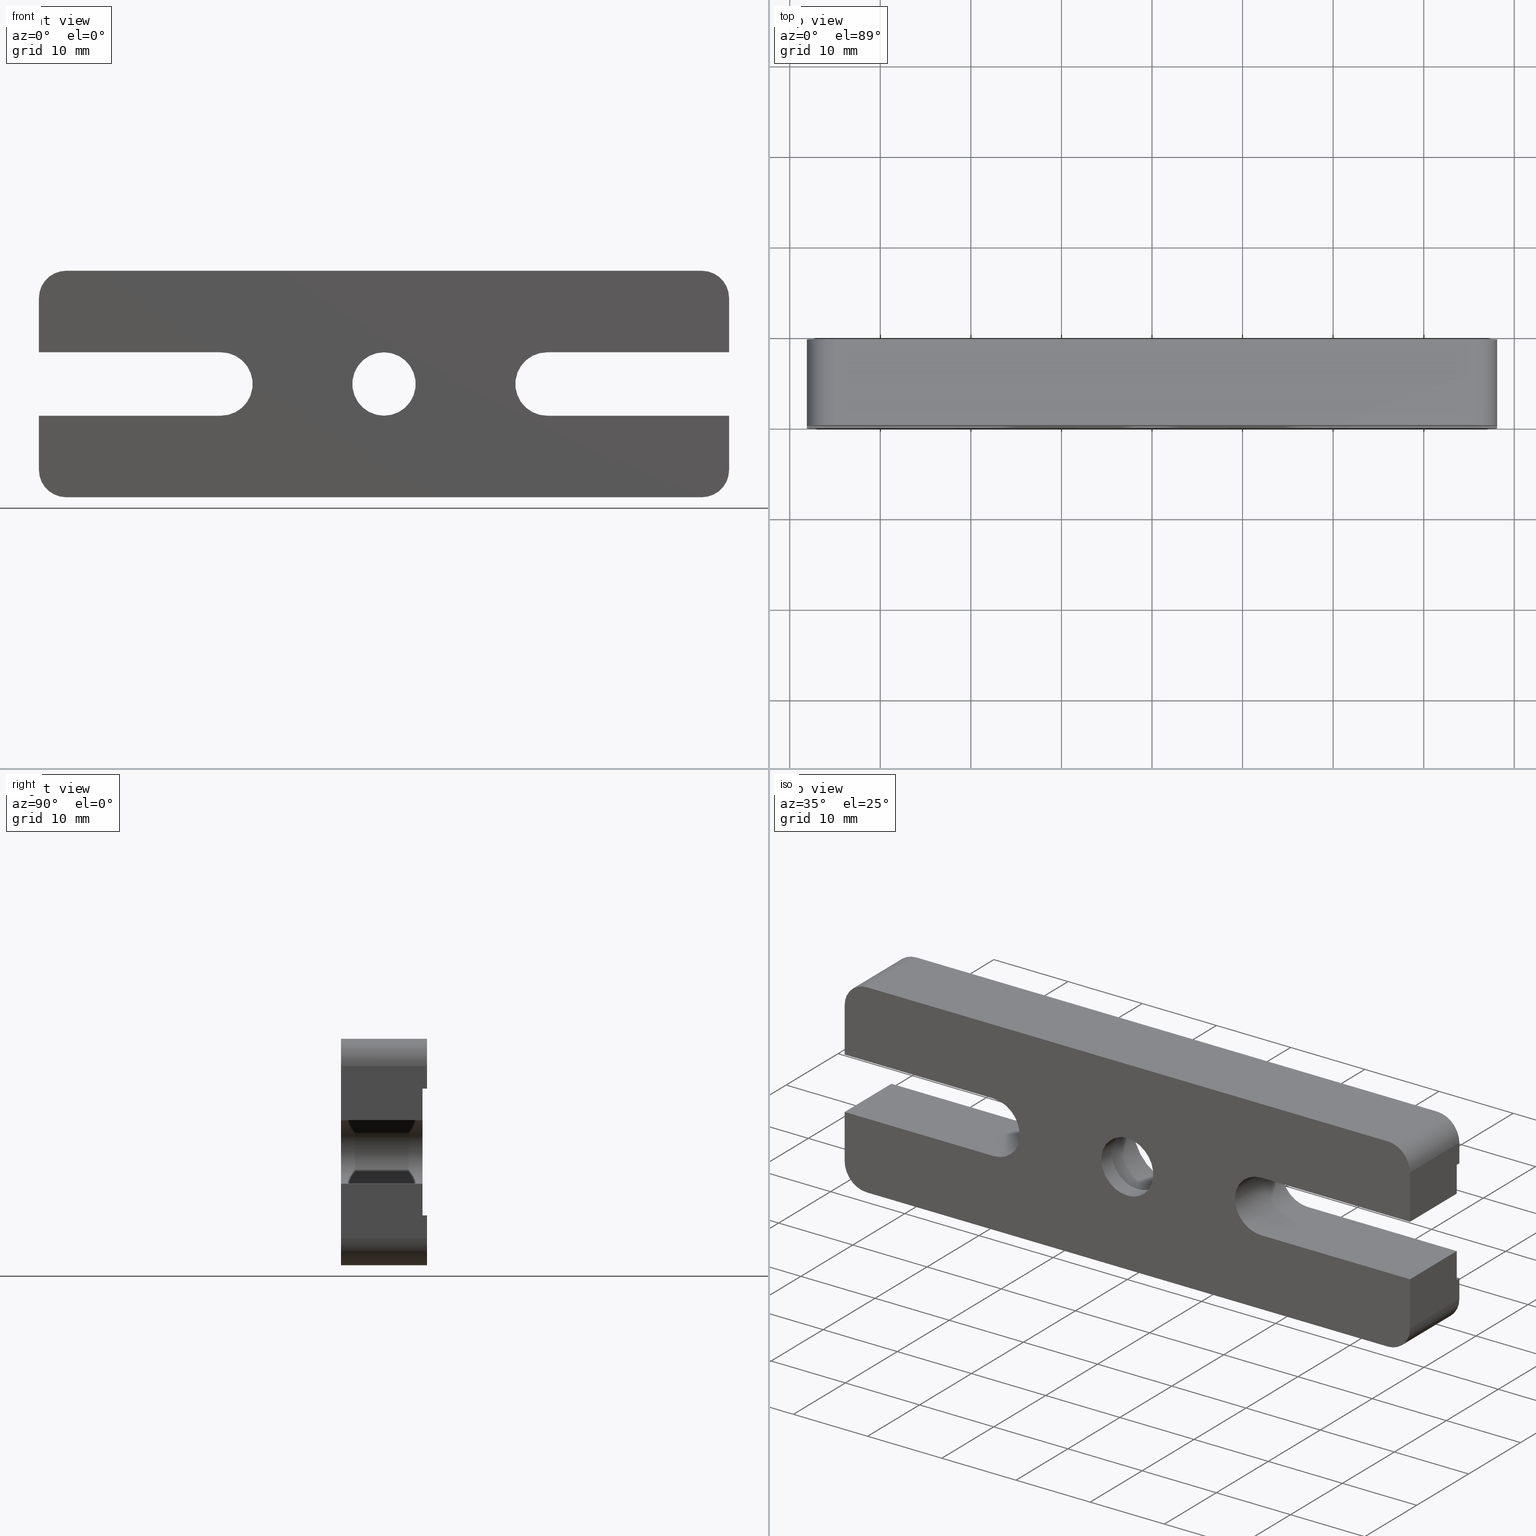
[diagram: canonical four-view strip — front | top / right | iso, engineering-drawing reading convention]
A machine part, canonical four-view strip (front | top / right | iso — engineering-drawing reading convention). The complete STEP part file that produces these views, byte-faithful:
ISO-10303-21;
HEADER;
FILE_DESCRIPTION (( 'STEP AP203' ),
    '1' );
FILE_NAME ('02SDB-1(M).STEP',
    '2016-02-26T07:36:42',
    ( '' ),
    ( '' ),
    'SwSTEP 2.0',
    'SolidWorks 2016',
    '' );
FILE_SCHEMA (( 'CONFIG_CONTROL_DESIGN' ));
ENDSEC;

DATA;
#1 = ORIENTED_EDGE ( 'NONE', *, *, #915, .F. ) ;
#2 = CARTESIAN_POINT ( 'NONE',  ( 4.286263797015736600E-016, 0.0000000000000000000, 3.500000000000000000 ) ) ;
#3 = ORIENTED_EDGE ( 'NONE', *, *, #689, .T. ) ;
#4 = ORIENTED_EDGE ( 'NONE', *, *, #368, .F. ) ;
#5 = AXIS2_PLACEMENT_3D ( 'NONE', #533, #335, #398 ) ;
#6 = ORIENTED_EDGE ( 'NONE', *, *, #856, .F. ) ;
#7 = ADVANCED_FACE ( 'NONE', ( #658 ), #763, .F. ) ;
#8 = EDGE_CURVE ( 'NONE', #418, #401, #861, .T. ) ;
#9 = EDGE_CURVE ( 'NONE', #792, #239, #513, .T. ) ;
#10 = VECTOR ( 'NONE', #295, 1000.000000000000000 ) ;
#11 = CARTESIAN_POINT ( 'NONE',  ( 35.10000000000005800, 9.500000000000000000, -12.50000000000000000 ) ) ;
#12 = ORIENTED_EDGE ( 'NONE', *, *, #570, .F. ) ;
#13 = LOCAL_TIME ( 15, 36, 42.00000000000000000, #871 ) ;
#14 = EDGE_LOOP ( 'NONE', ( #179, #363, #692, #353 ) ) ;
#15 = DIRECTION ( 'NONE',  ( 0.0000000000000000000, 1.000000000000000000, -0.0000000000000000000 ) ) ;
#16 = DIRECTION ( 'NONE',  ( 0.0000000000000000000, 1.000000000000000000, -0.0000000000000000000 ) ) ;
#17 = AXIS2_PLACEMENT_3D ( 'NONE', #326, #816, #604 ) ;
#18 = FACE_OUTER_BOUND ( 'NONE', #399, .T. ) ;
#19 = CARTESIAN_POINT ( 'NONE',  ( -62.51947198304053200, 0.0000000000000000000, -3.499999999999960000 ) ) ;
#20 = EDGE_CURVE ( 'NONE', #78, #418, #225, .T. ) ;
#21 = PLANE ( 'NONE',  #835 ) ;
#22 = CARTESIAN_POINT ( 'NONE',  ( -62.51947198304053200, 9.500000000000000000, 3.499999999999995600 ) ) ;
#23 = CC_DESIGN_PERSON_AND_ORGANIZATION_ASSIGNMENT ( #795, #188, ( #435 ) ) ;
#24 = CARTESIAN_POINT ( 'NONE',  ( -38.10000000000013600, 0.0000000000000000000, -3.500000000000014200 ) ) ;
#25 = EDGE_LOOP ( 'NONE', ( #569, #461, #436, #541, #184, #697 ) ) ;
#26 = DIRECTION ( 'NONE',  ( 0.0000000000000000000, 0.0000000000000000000, 1.000000000000000000 ) ) ;
#27 = CARTESIAN_POINT ( 'NONE',  ( 0.0000000000000000000, 2.000000000000000000, 5.500000000000000000 ) ) ;
#28 = EDGE_CURVE ( 'NONE', #244, #729, #101, .T. ) ;
#29 = VECTOR ( 'NONE', #609, 1000.000000000000000 ) ;
#30 = DIRECTION ( 'NONE',  ( -0.0000000000000000000, -1.000000000000000000, -0.0000000000000000000 ) ) ;
#31 = CARTESIAN_POINT ( 'NONE',  ( -62.51947198304053200, 9.500000000000000000, -12.49999999999998800 ) ) ;
#32 = VECTOR ( 'NONE', #725, 1000.000000000000000 ) ;
#33 = CIRCLE ( 'NONE', #485, 5.500000000000000000 ) ;
#34 = AXIS2_PLACEMENT_3D ( 'NONE', #524, #395, #434 ) ;
#35 = CARTESIAN_POINT ( 'NONE',  ( -62.51947198304053200, 0.0000000000000000000, 3.499999999999995600 ) ) ;
#36 = DIRECTION ( 'NONE',  ( -0.0000000000000000000, -1.000000000000000000, -0.0000000000000000000 ) ) ;
#37 = ORIENTED_EDGE ( 'NONE', *, *, #216, .T. ) ;
#38 = CARTESIAN_POINT ( 'NONE',  ( -38.10000000000007200, 9.000000000000000000, -6.999999999999995600 ) ) ;
#39 = EDGE_LOOP ( 'NONE', ( #327, #114, #390, #299 ) ) ;
#40 = CARTESIAN_POINT ( 'NONE',  ( -38.10000000000017200, 0.0000000000000000000, -2.803865225482112100E-013 ) ) ;
#41 = DIRECTION ( 'NONE',  ( 0.0000000000000000000, 1.000000000000000000, -0.0000000000000000000 ) ) ;
#42 = EDGE_CURVE ( 'NONE', #836, #602, #458, .T. ) ;
#43 = DIRECTION ( 'NONE',  ( -1.000000000000000000, 0.0000000000000000000, 1.726093010922184600E-016 ) ) ;
#44 =( NAMED_UNIT ( * ) SI_UNIT ( $, .STERADIAN. ) SOLID_ANGLE_UNIT ( ) );
#45 = EDGE_LOOP ( 'NONE', ( #103, #784, #912, #126 ) ) ;
#46 = FACE_OUTER_BOUND ( 'NONE', #207, .T. ) ;
#47 = CARTESIAN_POINT ( 'NONE',  ( 6.735557395310442000E-016, 9.000000000000000000, -5.500000000000000000 ) ) ;
#48 = AXIS2_PLACEMENT_3D ( 'NONE', #431, #519, #581 ) ;
#49 = EDGE_LOOP ( 'NONE', ( #210, #403, #441, #347, #479, #758 ) ) ;
#50 = FACE_OUTER_BOUND ( 'NONE', #603, .T. ) ;
#51 = CARTESIAN_POINT ( 'NONE',  ( -38.10000000000013600, 9.500000000000000000, 3.500000000000000000 ) ) ;
#52 = FACE_OUTER_BOUND ( 'NONE', #641, .T. ) ;
#53 = FACE_OUTER_BOUND ( 'NONE', #89, .T. ) ;
#54 = ADVANCED_FACE ( 'NONE', ( #896 ), #60, .F. ) ;
#55 = ORIENTED_EDGE ( 'NONE', *, *, #717, .F. ) ;
#56 = CALENDAR_DATE ( 2016, 26, 2 ) ;
#57 = EDGE_CURVE ( 'NONE', #426, #82, #75, .T. ) ;
#58 = CARTESIAN_POINT ( 'NONE',  ( -38.10000000000007200, 9.000000000000000000, 7.000000000000004400 ) ) ;
#59 = ADVANCED_FACE ( 'NONE', ( #53 ), #387, .F. ) ;
#60 = PLANE ( 'NONE',  #96 ) ;
#61 = ORGANIZATION ( 'UNSPECIFIED', 'UNSPECIFIED', '' ) ;
#62 = FACE_OUTER_BOUND ( 'NONE', #25, .T. ) ;
#63 = DIRECTION ( 'NONE',  ( 0.0000000000000000000, 0.0000000000000000000, 1.000000000000000000 ) ) ;
#64 = EDGE_LOOP ( 'NONE', ( #250, #142, #116, #863 ) ) ;
#65 = PERSON_AND_ORGANIZATION ( #279, #61 ) ;
#66 = CARTESIAN_POINT ( 'NONE',  ( 35.09999999999998000, 9.500000000000000000, 12.49999999999999800 ) ) ;
#67 = EDGE_CURVE ( 'NONE', #78, #677, #325, .T. ) ;
#68 = CC_DESIGN_DATE_AND_TIME_ASSIGNMENT ( #437, #334, ( #262 ) ) ;
#69 = DIRECTION ( 'NONE',  ( -0.0000000000000000000, -1.000000000000000000, -0.0000000000000000000 ) ) ;
#70 = EDGE_CURVE ( 'NONE', #885, #194, #199, .T. ) ;
#71 = FACE_OUTER_BOUND ( 'NONE', #49, .T. ) ;
#72 = CARTESIAN_POINT ( 'NONE',  ( 0.0000000000000000000, 9.500000000000000000, 0.0000000000000000000 ) ) ;
#73 = FACE_OUTER_BOUND ( 'NONE', #880, .T. ) ;
#74 = VECTOR ( 'NONE', #810, 1000.000000000000000 ) ;
#75 = CIRCLE ( 'NONE', #272, 3.500000000000000000 ) ;
#76 = ORIENTED_EDGE ( 'NONE', *, *, #737, .T. ) ;
#77 = CARTESIAN_POINT ( 'NONE',  ( 38.10000000000017200, 9.500000000000000000, 1.282031394306783400E-012 ) ) ;
#78 = VERTEX_POINT ( 'NONE', #562 ) ;
#79 = AXIS2_PLACEMENT_3D ( 'NONE', #617, #667, #192 ) ;
#80 = DIRECTION ( 'NONE',  ( -0.0000000000000000000, -1.000000000000000000, -0.0000000000000000000 ) ) ;
#81 = CC_DESIGN_APPROVAL ( #908, ( #262 ) ) ;
#82 = VERTEX_POINT ( 'NONE', #2 ) ;
#83 = VECTOR ( 'NONE', #705, 1000.000000000000000 ) ;
#84 = LINE ( 'NONE', #620, #198 ) ;
#85 = ORIENTED_EDGE ( 'NONE', *, *, #651, .T. ) ;
#86 = EDGE_LOOP ( 'NONE', ( #134, #3 ) ) ;
#87 = CARTESIAN_POINT ( 'NONE',  ( 0.0000000000000000000, 9.000000000000000000, 5.500000000000000000 ) ) ;
#88 = CARTESIAN_POINT ( 'NONE',  ( 35.09999999999998000, 9.500000000000000000, 9.499999999999916500 ) ) ;
#89 = EDGE_LOOP ( 'NONE', ( #283, #545, #636, #496 ) ) ;
#90 = APPROVAL_DATE_TIME ( #622, #852 ) ;
#91 = CARTESIAN_POINT ( 'NONE',  ( 0.0000000000000000000, 2.000000000000000000, 0.0000000000000000000 ) ) ;
#92 = ADVANCED_FACE ( 'NONE', ( #62 ), #868, .T. ) ;
#93 = EDGE_CURVE ( 'NONE', #792, #766, #574, .T. ) ;
#94 = DIRECTION ( 'NONE',  ( -1.272130549049676300E-014, 0.0000000000000000000, 1.000000000000000000 ) ) ;
#95 = ORIENTED_EDGE ( 'NONE', *, *, #368, .T. ) ;
#96 = AXIS2_PLACEMENT_3D ( 'NONE', #561, #275, #204 ) ;
#97 = LINE ( 'NONE', #149, #83 ) ;
#98 = VECTOR ( 'NONE', #243, 1000.000000000000000 ) ;
#99 = FACE_BOUND ( 'NONE', #526, .T. ) ;
#100 = CLOSED_SHELL ( 'NONE', ( #487, #297, #341, #59, #917, #227, #7, #560, #924, #629, #842, #768, #424, #416, #778, #410, #929, #274, #129, #919, #342, #92, #567, #130, #271, #54, #793 ) ) ;
#101 = LINE ( 'NONE', #273, #783 ) ;
#102 = DIRECTION ( 'NONE',  ( 0.0000000000000000000, 1.000000000000000000, -0.0000000000000000000 ) ) ;
#103 = ORIENTED_EDGE ( 'NONE', *, *, #28, .F. ) ;
#104 = CARTESIAN_POINT ( 'NONE',  ( 0.0000000000000000000, 0.0000000000000000000, 0.0000000000000000000 ) ) ;
#105 = DIRECTION ( 'NONE',  ( 1.000000000000000000, 0.0000000000000000000, -1.156482317317872200E-014 ) ) ;
#106 = EDGE_CURVE ( 'NONE', #418, #427, #672, .T. ) ;
#107 = CARTESIAN_POINT ( 'NONE',  ( 35.10000000000005800, 0.0000000000000000000, -9.500000000000000000 ) ) ;
#108 = EDGE_CURVE ( 'NONE', #913, #729, #150, .T. ) ;
#109 = DIRECTION ( 'NONE',  ( -0.0000000000000000000, -1.000000000000000000, -0.0000000000000000000 ) ) ;
#110 = CARTESIAN_POINT ( 'NONE',  ( 38.10000000000013600, 0.0000000000000000000, -3.500000000000014200 ) ) ;
#111 = DIRECTION ( 'NONE',  ( 0.0000000000000000000, -0.0000000000000000000, 1.000000000000000000 ) ) ;
#112 = DIRECTION ( 'NONE',  ( 0.0000000000000000000, 1.000000000000000000, -0.0000000000000000000 ) ) ;
#113 = CYLINDRICAL_SURFACE ( 'NONE', #464, 2.999999999999996400 ) ;
#114 = ORIENTED_EDGE ( 'NONE', *, *, #318, .F. ) ;
#115 = DIRECTION ( 'NONE',  ( -0.0000000000000000000, 1.000000000000000000, -0.0000000000000000000 ) ) ;
#116 = ORIENTED_EDGE ( 'NONE', *, *, #928, .T. ) ;
#117 = PERSON_AND_ORGANIZATION ( #279, #61 ) ;
#118 = DIRECTION ( 'NONE',  ( 1.156482317317872100E-014, 0.0000000000000000000, 1.000000000000000000 ) ) ;
#119 = DIRECTION ( 'NONE',  ( 0.0000000000000000000, 0.0000000000000000000, 1.000000000000000000 ) ) ;
#120 = AXIS2_PLACEMENT_3D ( 'NONE', #549, #891, #900 ) ;
#121 = EDGE_CURVE ( 'NONE', #677, #427, #131, .T. ) ;
#122 = ORIENTED_EDGE ( 'NONE', *, *, #285, .F. ) ;
#123 = SHAPE_DEFINITION_REPRESENTATION ( #344, #226 ) ;
#124 = VECTOR ( 'NONE', #507, 1000.000000000000000 ) ;
#125 = VECTOR ( 'NONE', #136, 1000.000000000000000 ) ;
#126 = ORIENTED_EDGE ( 'NONE', *, *, #265, .F. ) ;
#127 = EDGE_CURVE ( 'NONE', #669, #82, #910, .T. ) ;
#128 = COORDINATED_UNIVERSAL_TIME_OFFSET ( 8, 0, .AHEAD. ) ;
#129 = ADVANCED_FACE ( 'NONE', ( #52 ), #145, .F. ) ;
#130 = ADVANCED_FACE ( 'NONE', ( #537, #893 ), #298, .T. ) ;
#131 = LINE ( 'NONE', #788, #124 ) ;
#132 = CIRCLE ( 'NONE', #79, 3.000000000000003600 ) ;
#133 = VECTOR ( 'NONE', #352, 1000.000000000000000 ) ;
#134 = ORIENTED_EDGE ( 'NONE', *, *, #613, .T. ) ;
#135 = ORIENTED_EDGE ( 'NONE', *, *, #392, .T. ) ;
#136 = DIRECTION ( 'NONE',  ( -0.0000000000000000000, -1.000000000000000000, -0.0000000000000000000 ) ) ;
#137 = CARTESIAN_POINT ( 'NONE',  ( -38.10000000000013600, 9.500000000000000000, -3.500000000000014200 ) ) ;
#138 = DIRECTION ( 'NONE',  ( -0.0000000000000000000, 1.000000000000000000, -0.0000000000000000000 ) ) ;
#139 = VECTOR ( 'NONE', #292, 1000.000000000000000 ) ;
#140 = FACE_OUTER_BOUND ( 'NONE', #772, .T. ) ;
#141 = VECTOR ( 'NONE', #36, 1000.000000000000000 ) ;
#142 = ORIENTED_EDGE ( 'NONE', *, *, #717, .T. ) ;
#143 = DIRECTION ( 'NONE',  ( -0.0000000000000000000, 0.0000000000000000000, 1.000000000000000000 ) ) ;
#144 = CARTESIAN_POINT ( 'NONE',  ( 18.00000000000000000, 9.000000000000000000, 0.0000000000000000000 ) ) ;
#145 = PLANE ( 'NONE',  #48 ) ;
#146 = DIRECTION ( 'NONE',  ( 1.272130549049676300E-014, 0.0000000000000000000, -1.000000000000000000 ) ) ;
#147 = DIRECTION ( 'NONE',  ( 0.0000000000000000000, 1.000000000000000000, -0.0000000000000000000 ) ) ;
#148 = EDGE_CURVE ( 'NONE', #313, #773, #493, .T. ) ;
#149 = CARTESIAN_POINT ( 'NONE',  ( -62.51947198304053200, 0.0000000000000000000, -12.49999999999998800 ) ) ;
#150 = LINE ( 'NONE', #866, #920 ) ;
#151 = LINE ( 'NONE', #873, #538 ) ;
#152 = ORIENTED_EDGE ( 'NONE', *, *, #556, .F. ) ;
#153 = ORIENTED_EDGE ( 'NONE', *, *, #699, .T. ) ;
#154 = ORIENTED_EDGE ( 'NONE', *, *, #9, .F. ) ;
#155 = CARTESIAN_POINT ( 'NONE',  ( 38.09999999999991600, 9.500000000000000000, 7.000000000000004400 ) ) ;
#156 = EDGE_LOOP ( 'NONE', ( #822, #365, #716, #505, #898, #675 ) ) ;
#157 = CALENDAR_DATE ( 2016, 26, 2 ) ;
#158 = DIRECTION ( 'NONE',  ( 1.156482317317874300E-014, 0.0000000000000000000, 1.000000000000000000 ) ) ;
#159 = DIRECTION ( 'NONE',  ( 0.0000000000000000000, 0.0000000000000000000, 1.000000000000000000 ) ) ;
#160 = DIRECTION ( 'NONE',  ( -1.000000000000000000, 0.0000000000000000000, 5.394040659131827300E-016 ) ) ;
#161 = DIRECTION ( 'NONE',  ( 1.000000000000000000, 0.0000000000000000000, 9.884464250580091000E-017 ) ) ;
#162 = VECTOR ( 'NONE', #801, 1000.000000000000000 ) ;
#163 = EDGE_CURVE ( 'NONE', #196, #619, #726, .T. ) ;
#164 = VECTOR ( 'NONE', #865, 1000.000000000000000 ) ;
#165 = LINE ( 'NONE', #440, #618 ) ;
#166 = CARTESIAN_POINT ( 'NONE',  ( -35.10000000000005800, 9.500000000000000000, -12.49999999999999100 ) ) ;
#167 = VERTEX_POINT ( 'NONE', #171 ) ;
#168 = VERTEX_POINT ( 'NONE', #659 ) ;
#169 = DIRECTION ( 'NONE',  ( 0.0000000000000000000, 1.000000000000000000, 0.0000000000000000000 ) ) ;
#170 = EDGE_CURVE ( 'NONE', #836, #792, #596, .T. ) ;
#171 = CARTESIAN_POINT ( 'NONE',  ( 18.00000000000000400, 9.000000000000000000, -3.500000000000003600 ) ) ;
#172 = CARTESIAN_POINT ( 'NONE',  ( -38.10000000000017200, 9.500000000000000000, -2.803865225482112100E-013 ) ) ;
#173 = PLANE ( 'NONE',  #430 ) ;
#174 = CARTESIAN_POINT ( 'NONE',  ( 38.10000000000006500, 9.500000000000000000, -9.500000000000000000 ) ) ;
#175 = CARTESIAN_POINT ( 'NONE',  ( -35.10000000000006500, 0.0000000000000000000, 9.499999999999994700 ) ) ;
#176 = AXIS2_PLACEMENT_3D ( 'NONE', #91, #881, #719 ) ;
#177 = PERSON_AND_ORGANIZATION ( #279, #61 ) ;
#178 = LINE ( 'NONE', #457, #921 ) ;
#179 = ORIENTED_EDGE ( 'NONE', *, *, #753, .T. ) ;
#180 = CARTESIAN_POINT ( 'NONE',  ( -35.10000000000005800, 9.500000000000000000, -12.49999999999999100 ) ) ;
#181 = ORIENTED_EDGE ( 'NONE', *, *, #491, .F. ) ;
#182 = CARTESIAN_POINT ( 'NONE',  ( 38.09999999999991600, 9.000000000000000000, -7.000000000000013300 ) ) ;
#183 = VERTEX_POINT ( 'NONE', #812 ) ;
#184 = ORIENTED_EDGE ( 'NONE', *, *, #70, .T. ) ;
#185 = APPLICATION_CONTEXT ( 'configuration controlled 3d designs of mechanical parts and assemblies' ) ;
#186 = CARTESIAN_POINT ( 'NONE',  ( -38.10000000000007200, 9.500000000000000000, -6.999999999999995600 ) ) ;
#187 = EDGE_CURVE ( 'NONE', #703, #239, #857, .T. ) ;
#188 = PERSON_AND_ORGANIZATION_ROLE ( 'design_supplier' ) ;
#189 = CARTESIAN_POINT ( 'NONE',  ( -62.51947198304053200, 0.0000000000000000000, -3.500000000000027500 ) ) ;
#190 = CARTESIAN_POINT ( 'NONE',  ( -18.00000000000000400, 9.000000000000000000, 3.500000000000003600 ) ) ;
#191 = PERSON_AND_ORGANIZATION_ROLE ( 'creator' ) ;
#192 = DIRECTION ( 'NONE',  ( 0.0000000000000000000, 0.0000000000000000000, 1.000000000000000000 ) ) ;
#193 = VECTOR ( 'NONE', #254, 1000.000000000000000 ) ;
#194 = VERTEX_POINT ( 'NONE', #384 ) ;
#195 = CARTESIAN_POINT ( 'NONE',  ( 35.09999999999998000, 0.0000000000000000000, 9.499999999999916500 ) ) ;
#196 = VERTEX_POINT ( 'NONE', #27 ) ;
#197 = AXIS2_PLACEMENT_3D ( 'NONE', #195, #406, #853 ) ;
#198 = VECTOR ( 'NONE', #428, 1000.000000000000000 ) ;
#199 = CIRCLE ( 'NONE', #360, 3.000000000000080800 ) ;
#200 = ORIENTED_EDGE ( 'NONE', *, *, #890, .F. ) ;
#201 = EDGE_CURVE ( 'NONE', #913, #854, #711, .T. ) ;
#202 = ORIENTED_EDGE ( 'NONE', *, *, #888, .F. ) ;
#203 = ORIENTED_EDGE ( 'NONE', *, *, #106, .F. ) ;
#204 = DIRECTION ( 'NONE',  ( -1.000000000000000000, 0.0000000000000000000, 2.276539994720219800E-016 ) ) ;
#205 = LINE ( 'NONE', #532, #29 ) ;
#206 = CYLINDRICAL_SURFACE ( 'NONE', #531, 3.500000000000000000 ) ;
#207 = EDGE_LOOP ( 'NONE', ( #798, #152, #517, #872, #504, #925 ) ) ;
#208 = LINE ( 'NONE', #814, #682 ) ;
#209 = ORIENTED_EDGE ( 'NONE', *, *, #170, .T. ) ;
#210 = ORIENTED_EDGE ( 'NONE', *, *, #106, .T. ) ;
#211 = ORIENTED_EDGE ( 'NONE', *, *, #689, .F. ) ;
#212 = CARTESIAN_POINT ( 'NONE',  ( -18.00000000000000000, 9.500000000000000000, 0.0000000000000000000 ) ) ;
#213 = DIRECTION ( 'NONE',  ( -0.0000000000000000000, -1.000000000000000000, -0.0000000000000000000 ) ) ;
#214 = CARTESIAN_POINT ( 'NONE',  ( 38.09999999999991600, 9.000000000000000000, 7.000000000000004400 ) ) ;
#215 = EDGE_CURVE ( 'NONE', #669, #183, #878, .T. ) ;
#216 = EDGE_CURVE ( 'NONE', #401, #270, #310, .T. ) ;
#217 = DIRECTION ( 'NONE',  ( -0.0000000000000000000, -1.000000000000000000, -0.0000000000000000000 ) ) ;
#218 = CARTESIAN_POINT ( 'NONE',  ( 0.0000000000000000000, 0.0000000000000000000, -3.500000000000000000 ) ) ;
#219 = CARTESIAN_POINT ( 'NONE',  ( 0.0000000000000000000, 2.000000000000000000, 0.0000000000000000000 ) ) ;
#220 = VECTOR ( 'NONE', #741, 1000.000000000000000 ) ;
#221 = LINE ( 'NONE', #632, #522 ) ;
#222 = DESIGN_CONTEXT ( 'detailed design', #185, 'design' ) ;
#223 = CYLINDRICAL_SURFACE ( 'NONE', #351, 3.500000000000000000 ) ;
#224 = ORIENTED_EDGE ( 'NONE', *, *, #234, .T. ) ;
#225 = LINE ( 'NONE', #58, #133 ) ;
#226 = ADVANCED_BREP_SHAPE_REPRESENTATION ( '02SDB-1(M)', ( #490, #237 ), #731 ) ;
#227 = ADVANCED_FACE ( 'NONE', ( #73 ), #805, .F. ) ;
#228 = AXIS2_PLACEMENT_3D ( 'NONE', #175, #16, #26 ) ;
#229 = EDGE_LOOP ( 'NONE', ( #578, #37, #135, #446 ) ) ;
#230 = APPROVAL_PERSON_ORGANIZATION ( #899, #908, #477 ) ;
#231 = CARTESIAN_POINT ( 'NONE',  ( 6.735557395310442000E-016, 2.000000000000000000, -5.500000000000000000 ) ) ;
#232 = CARTESIAN_POINT ( 'NONE',  ( 4.286263797015736600E-016, 9.500000000000000000, 3.500000000000000000 ) ) ;
#233 = ORIENTED_EDGE ( 'NONE', *, *, #201, .F. ) ;
#234 = EDGE_CURVE ( 'NONE', #270, #642, #358, .T. ) ;
#235 = FACE_OUTER_BOUND ( 'NONE', #724, .T. ) ;
#236 = LINE ( 'NONE', #797, #683 ) ;
#237 = AXIS2_PLACEMENT_3D ( 'NONE', #544, #615, #606 ) ;
#238 = DIRECTION ( 'NONE',  ( -1.000000000000000000, 0.0000000000000000000, -5.394040659131827300E-016 ) ) ;
#239 = VERTEX_POINT ( 'NONE', #24 ) ;
#240 = CARTESIAN_POINT ( 'NONE',  ( -62.51947198304053200, 0.0000000000000000000, 2.020352918042384900E-015 ) ) ;
#241 = VERTEX_POINT ( 'NONE', #591 ) ;
#242 = EDGE_CURVE ( 'NONE', #922, #885, #833, .T. ) ;
#243 = DIRECTION ( 'NONE',  ( -0.0000000000000000000, -1.000000000000000000, -0.0000000000000000000 ) ) ;
#244 = VERTEX_POINT ( 'NONE', #245 ) ;
#245 = CARTESIAN_POINT ( 'NONE',  ( 38.09999999999991600, 9.000000000000000000, -3.500000000000014200 ) ) ;
#246 = AXIS2_PLACEMENT_3D ( 'NONE', #572, #143, #860 ) ;
#247 = CIRCLE ( 'NONE', #864, 3.500000000000000000 ) ;
#248 = DIRECTION ( 'NONE',  ( 1.156482317317872100E-014, 0.0000000000000000000, 1.000000000000000000 ) ) ;
#249 = CARTESIAN_POINT ( 'NONE',  ( -38.10000000000006500, 9.500000000000000000, 9.499999999999994700 ) ) ;
#250 = ORIENTED_EDGE ( 'NONE', *, *, #252, .F. ) ;
#251 = DIRECTION ( 'NONE',  ( -0.0000000000000000000, -1.000000000000000000, -0.0000000000000000000 ) ) ;
#252 = EDGE_CURVE ( 'NONE', #302, #695, #483, .T. ) ;
#253 = APPLICATION_PROTOCOL_DEFINITION ( 'international standard', 'config_control_design', 1994, #185 ) ;
#254 = DIRECTION ( 'NONE',  ( -1.000000000000000000, -0.0000000000000000000, 2.276539994720219800E-016 ) ) ;
#255 = CIRCLE ( 'NONE', #120, 2.999999999999995600 ) ;
#256 = FACE_OUTER_BOUND ( 'NONE', #156, .T. ) ;
#257 = CARTESIAN_POINT ( 'NONE',  ( -35.10000000000006500, 9.500000000000000000, 12.49999999999999300 ) ) ;
#258 = SECURITY_CLASSIFICATION_LEVEL ( 'unclassified' ) ;
#259 = CARTESIAN_POINT ( 'NONE',  ( -18.00000000000000000, 9.000000000000000000, 0.0000000000000000000 ) ) ;
#260 = VERTEX_POINT ( 'NONE', #309 ) ;
#261 = AXIS2_PLACEMENT_3D ( 'NONE', #77, #509, #146 ) ;
#262 = SECURITY_CLASSIFICATION ( '', '', #258 ) ;
#263 = ORIENTED_EDGE ( 'NONE', *, *, #278, .F. ) ;
#264 = VECTOR ( 'NONE', #605, 1000.000000000000000 ) ;
#265 = EDGE_CURVE ( 'NONE', #729, #644, #411, .T. ) ;
#266 = DIRECTION ( 'NONE',  ( -0.0000000000000000000, -1.000000000000000000, -0.0000000000000000000 ) ) ;
#267 = FACE_OUTER_BOUND ( 'NONE', #362, .T. ) ;
#268 = EDGE_CURVE ( 'NONE', #588, #608, #700, .T. ) ;
#269 = DIRECTION ( 'NONE',  ( 0.0000000000000000000, 1.000000000000000000, 0.0000000000000000000 ) ) ;
#270 = VERTEX_POINT ( 'NONE', #445 ) ;
#271 = ADVANCED_FACE ( 'NONE', ( #502, #634 ), #803, .T. ) ;
#272 = AXIS2_PLACEMENT_3D ( 'NONE', #350, #417, #63 ) ;
#273 = CARTESIAN_POINT ( 'NONE',  ( 38.10000000000013600, 9.500000000000000000, -3.500000000000014200 ) ) ;
#274 = ADVANCED_FACE ( 'NONE', ( #18 ), #684, .T. ) ;
#275 = DIRECTION ( 'NONE',  ( -2.276539994720219800E-016, 0.0000000000000000000, -1.000000000000000000 ) ) ;
#276 = LINE ( 'NONE', #786, #139 ) ;
#277 = FACE_OUTER_BOUND ( 'NONE', #45, .T. ) ;
#278 = EDGE_CURVE ( 'NONE', #895, #922, #255, .T. ) ;
#279 = PERSON ( 'UNSPECIFIED', 'UNSPECIFIED', 'UNSPECIFIED', ('UNSPECIFIED'), ('UNSPECIFIED'), ('UNSPECIFIED') ) ;
#280 = ORIENTED_EDGE ( 'NONE', *, *, #542, .F. ) ;
#281 = CC_DESIGN_APPROVAL ( #665, ( #777 ) ) ;
#282 = COORDINATED_UNIVERSAL_TIME_OFFSET ( 8, 0, .AHEAD. ) ;
#283 = ORIENTED_EDGE ( 'NONE', *, *, #421, .F. ) ;
#284 = CARTESIAN_POINT ( 'NONE',  ( 18.00000000000000000, 9.500000000000000000, 0.0000000000000000000 ) ) ;
#285 = EDGE_CURVE ( 'NONE', #82, #426, #247, .T. ) ;
#286 = DIRECTION ( 'NONE',  ( -0.0000000000000000000, -1.000000000000000000, -0.0000000000000000000 ) ) ;
#287 = LINE ( 'NONE', #447, #162 ) ;
#288 = LINE ( 'NONE', #638, #780 ) ;
#289 = VERTEX_POINT ( 'NONE', #182 ) ;
#290 = AXIS2_PLACEMENT_3D ( 'NONE', #284, #694, #423 ) ;
#291 = VERTEX_POINT ( 'NONE', #535 ) ;
#292 = DIRECTION ( 'NONE',  ( -0.0000000000000000000, -1.000000000000000000, -0.0000000000000000000 ) ) ;
#293 = ORIENTED_EDGE ( 'NONE', *, *, #265, .T. ) ;
#294 = DIRECTION ( 'NONE',  ( 0.0000000000000000000, 1.000000000000000000, 0.0000000000000000000 ) ) ;
#295 = DIRECTION ( 'NONE',  ( 1.000000000000000000, -0.0000000000000000000, 5.394040659131827300E-016 ) ) ;
#296 = EDGE_CURVE ( 'NONE', #194, #642, #779, .T. ) ;
#297 = ADVANCED_FACE ( 'NONE', ( #419 ), #594, .F. ) ;
#298 = PLANE ( 'NONE',  #760 ) ;
#299 = ORIENTED_EDGE ( 'NONE', *, *, #472, .T. ) ;
#300 = VERTEX_POINT ( 'NONE', #380 ) ;
#301 = CARTESIAN_POINT ( 'NONE',  ( -18.00000000000000400, 0.0000000000000000000, -3.500000000000003600 ) ) ;
#302 = VERTEX_POINT ( 'NONE', #190 ) ;
#303 = ORIENTED_EDGE ( 'NONE', *, *, #472, .F. ) ;
#304 = CARTESIAN_POINT ( 'NONE',  ( -62.51947198304053200, 9.500000000000000000, -3.500000000000027500 ) ) ;
#305 = AXIS2_PLACEMENT_3D ( 'NONE', #355, #499, #759 ) ;
#306 = ORIENTED_EDGE ( 'NONE', *, *, #9, .T. ) ;
#307 = CARTESIAN_POINT ( 'NONE',  ( 0.0000000000000000000, 9.000000000000000000, 0.0000000000000000000 ) ) ;
#308 = FACE_OUTER_BOUND ( 'NONE', #674, .T. ) ;
#309 = CARTESIAN_POINT ( 'NONE',  ( -35.10000000000005800, 0.0000000000000000000, -12.49999999999999100 ) ) ;
#310 = LINE ( 'NONE', #889, #141 ) ;
#311 = CIRCLE ( 'NONE', #843, 3.500000000000003600 ) ;
#312 = ORIENTED_EDGE ( 'NONE', *, *, #20, .T. ) ;
#313 = VERTEX_POINT ( 'NONE', #614 ) ;
#314 = CARTESIAN_POINT ( 'NONE',  ( 18.00000000000000400, 0.0000000000000000000, -3.500000000000003600 ) ) ;
#315 = ORIENTED_EDGE ( 'NONE', *, *, #870, .T. ) ;
#316 = EDGE_CURVE ( 'NONE', #289, #836, #876, .T. ) ;
#317 = ORIENTED_EDGE ( 'NONE', *, *, #163, .F. ) ;
#318 = EDGE_CURVE ( 'NONE', #608, #260, #611, .T. ) ;
#319 = CARTESIAN_POINT ( 'NONE',  ( -35.10000000000006500, 9.500000000000000000, 9.499999999999994700 ) ) ;
#320 = DIRECTION ( 'NONE',  ( 0.0000000000000000000, 0.0000000000000000000, 1.000000000000000000 ) ) ;
#321 = DIRECTION ( 'NONE',  ( 0.0000000000000000000, 0.0000000000000000000, 1.000000000000000000 ) ) ;
#322 =( NAMED_UNIT ( * ) PLANE_ANGLE_UNIT ( ) SI_UNIT ( $, .RADIAN. ) );
#323 = FACE_OUTER_BOUND ( 'NONE', #813, .T. ) ;
#324 = DIRECTION ( 'NONE',  ( 1.000000000000000000, 0.0000000000000000000, 5.394040659131827300E-016 ) ) ;
#325 = LINE ( 'NONE', #568, #599 ) ;
#326 = CARTESIAN_POINT ( 'NONE',  ( -35.10000000000005800, 9.500000000000000000, -9.499999999999992900 ) ) ;
#327 = ORIENTED_EDGE ( 'NONE', *, *, #439, .T. ) ;
#328 = CARTESIAN_POINT ( 'NONE',  ( 38.09999999999991600, 9.000000000000000000, 3.500000000000001300 ) ) ;
#329 = DATE_TIME_ROLE ( 'creation_date' ) ;
#330 = CALENDAR_DATE ( 2016, 26, 2 ) ;
#331 = ORIENTED_EDGE ( 'NONE', *, *, #651, .F. ) ;
#332 = EDGE_CURVE ( 'NONE', #291, #78, #205, .T. ) ;
#333 = DIRECTION ( 'NONE',  ( 0.0000000000000000000, 0.0000000000000000000, 1.000000000000000000 ) ) ;
#334 = DATE_TIME_ROLE ( 'classification_date' ) ;
#335 = DIRECTION ( 'NONE',  ( 9.884464250580091000E-017, 0.0000000000000000000, -1.000000000000000000 ) ) ;
#336 = VECTOR ( 'NONE', #109, 1000.000000000000000 ) ;
#337 = VECTOR ( 'NONE', #652, 1000.000000000000000 ) ;
#338 = LINE ( 'NONE', #804, #412 ) ;
#339 = APPLICATION_PROTOCOL_DEFINITION ( 'international standard', 'config_control_design', 1994, #824 ) ;
#340 = PLANE ( 'NONE',  #246 ) ;
#341 = ADVANCED_FACE ( 'NONE', ( #855 ), #671, .F. ) ;
#342 = ADVANCED_FACE ( 'NONE', ( #521 ), #113, .T. ) ;
#343 = CARTESIAN_POINT ( 'NONE',  ( -38.10000000000007200, 9.000000000000000000, -6.999999999999995600 ) ) ;
#344 = PRODUCT_DEFINITION_SHAPE ( 'NONE', 'NONE',  #777 ) ;
#345 = LINE ( 'NONE', #527, #656 ) ;
#346 = EDGE_CURVE ( 'NONE', #764, #300, #653, .T. ) ;
#347 = ORIENTED_EDGE ( 'NONE', *, *, #234, .F. ) ;
#348 = VERTEX_POINT ( 'NONE', #733 ) ;
#349 = CALENDAR_DATE ( 2016, 26, 2 ) ;
#350 = CARTESIAN_POINT ( 'NONE',  ( 0.0000000000000000000, 0.0000000000000000000, 0.0000000000000000000 ) ) ;
#351 = AXIS2_PLACEMENT_3D ( 'NONE', #72, #635, #576 ) ;
#352 = DIRECTION ( 'NONE',  ( 1.000000000000000000, 0.0000000000000000000, 0.0000000000000000000 ) ) ;
#353 = ORIENTED_EDGE ( 'NONE', *, *, #637, .T. ) ;
#354 = VERTEX_POINT ( 'NONE', #738 ) ;
#355 = CARTESIAN_POINT ( 'NONE',  ( 0.0000000000000000000, 2.000000000000000000, 0.0000000000000000000 ) ) ;
#356 = EDGE_CURVE ( 'NONE', #608, #348, #455, .T. ) ;
#357 = CARTESIAN_POINT ( 'NONE',  ( 38.09999999999991600, 9.500000000000000000, -7.000000000000013300 ) ) ;
#358 = LINE ( 'NONE', #369, #655 ) ;
#359 = FACE_OUTER_BOUND ( 'NONE', #757, .T. ) ;
#360 = AXIS2_PLACEMENT_3D ( 'NONE', #88, #147, #707 ) ;
#361 = DIRECTION ( 'NONE',  ( 0.0000000000000000000, 0.0000000000000000000, 1.000000000000000000 ) ) ;
#362 = EDGE_LOOP ( 'NONE', ( #202, #882, #391, #923 ) ) ;
#363 = ORIENTED_EDGE ( 'NONE', *, *, #42, .F. ) ;
#364 = DIRECTION ( 'NONE',  ( -0.0000000000000000000, -1.000000000000000000, -0.0000000000000000000 ) ) ;
#365 = ORIENTED_EDGE ( 'NONE', *, *, #67, .F. ) ;
#366 = PERSON_AND_ORGANIZATION ( #279, #61 ) ;
#367 = ORIENTED_EDGE ( 'NONE', *, *, #737, .F. ) ;
#368 = EDGE_CURVE ( 'NONE', #241, #913, #752, .T. ) ;
#369 = CARTESIAN_POINT ( 'NONE',  ( 38.10000000000017200, 0.0000000000000000000, 1.282031394306783400E-012 ) ) ;
#370 = LINE ( 'NONE', #397, #264 ) ;
#371 = VECTOR ( 'NONE', #552, 1000.000000000000000 ) ;
#372 = DIRECTION ( 'NONE',  ( 1.482669637587012100E-016, -0.0000000000000000000, 1.000000000000000000 ) ) ;
#373 = EDGE_CURVE ( 'NONE', #168, #869, #370, .T. ) ;
#374 = ORIENTED_EDGE ( 'NONE', *, *, #373, .F. ) ;
#375 = CARTESIAN_POINT ( 'NONE',  ( 38.10000000000006500, 0.0000000000000000000, -9.500000000000000000 ) ) ;
#376 = ORIENTED_EDGE ( 'NONE', *, *, #201, .T. ) ;
#377 = DIRECTION ( 'NONE',  ( 1.726093010922184600E-016, 0.0000000000000000000, -1.000000000000000000 ) ) ;
#378 = AXIS2_PLACEMENT_3D ( 'NONE', #688, #269, #930 ) ;
#379 = CARTESIAN_POINT ( 'NONE',  ( 35.10000000000005800, 9.500000000000000000, -12.50000000000000000 ) ) ;
#380 = CARTESIAN_POINT ( 'NONE',  ( -38.10000000000006500, 0.0000000000000000000, 9.499999999999994700 ) ) ;
#381 = DIRECTION ( 'NONE',  ( 0.0000000000000000000, 1.000000000000000000, -0.0000000000000000000 ) ) ;
#382 = CARTESIAN_POINT ( 'NONE',  ( 35.10000000000005800, 9.500000000000000000, -9.500000000000000000 ) ) ;
#383 = LINE ( 'NONE', #51, #467 ) ;
#384 = CARTESIAN_POINT ( 'NONE',  ( 38.10000000000005800, 9.500000000000000000, 9.499999999999916500 ) ) ;
#385 = FACE_OUTER_BOUND ( 'NONE', #515, .T. ) ;
#386 = ORIENTED_EDGE ( 'NONE', *, *, #523, .T. ) ;
#387 = CYLINDRICAL_SURFACE ( 'NONE', #290, 3.500000000000003600 ) ;
#388 = EDGE_LOOP ( 'NONE', ( #6, #883 ) ) ;
#389 = CARTESIAN_POINT ( 'NONE',  ( -38.10000000000007200, 9.000000000000000000, -3.500000000000009300 ) ) ;
#390 = ORIENTED_EDGE ( 'NONE', *, *, #268, .F. ) ;
#391 = ORIENTED_EDGE ( 'NONE', *, *, #252, .T. ) ;
#392 = EDGE_CURVE ( 'NONE', #270, #846, #208, .T. ) ;
#393 = DIRECTION ( 'NONE',  ( 0.0000000000000000000, 0.0000000000000000000, -1.000000000000000000 ) ) ;
#394 = ORIENTED_EDGE ( 'NONE', *, *, #373, .T. ) ;
#395 = DIRECTION ( 'NONE',  ( -0.0000000000000000000, -1.000000000000000000, -0.0000000000000000000 ) ) ;
#396 = DIRECTION ( 'NONE',  ( 0.0000000000000000000, 1.000000000000000000, 0.0000000000000000000 ) ) ;
#397 = CARTESIAN_POINT ( 'NONE',  ( -62.51947198304053200, 0.0000000000000000000, 12.49999999999998900 ) ) ;
#398 = DIRECTION ( 'NONE',  ( -1.000000000000000000, 0.0000000000000000000, -9.884464250580091000E-017 ) ) ;
#399 = EDGE_LOOP ( 'NONE', ( #76, #743, #558, #926 ) ) ;
#400 = LINE ( 'NONE', #11, #819 ) ;
#401 = VERTEX_POINT ( 'NONE', #328 ) ;
#402 = AXIS2_PLACEMENT_3D ( 'NONE', #454, #646, #528 ) ;
#403 = ORIENTED_EDGE ( 'NONE', *, *, #839, .T. ) ;
#404 = EDGE_LOOP ( 'NONE', ( #828, #825, #548, #834, #811, #209, #484, #55, #181, #794, #312, #443 ) ) ;
#405 = CC_DESIGN_PERSON_AND_ORGANIZATION_ASSIGNMENT ( #117, #191, ( #777 ) ) ;
#406 = DIRECTION ( 'NONE',  ( 0.0000000000000000000, 1.000000000000000000, -0.0000000000000000000 ) ) ;
#407 = EDGE_CURVE ( 'NONE', #922, #168, #624, .T. ) ;
#408 = VECTOR ( 'NONE', #459, 1000.000000000000000 ) ;
#409 = VECTOR ( 'NONE', #213, 1000.000000000000000 ) ;
#410 = ADVANCED_FACE ( 'NONE', ( #235 ), #480, .T. ) ;
#411 = LINE ( 'NONE', #19, #32 ) ;
#412 = VECTOR ( 'NONE', #593, 1000.000000000000000 ) ;
#413 = ORIENTED_EDGE ( 'NONE', *, *, #906, .F. ) ;
#414 = AXIS2_PLACEMENT_3D ( 'NONE', #884, #451, #734 ) ;
#415 = CALENDAR_DATE ( 2016, 26, 2 ) ;
#416 = ADVANCED_FACE ( 'NONE', ( #71 ), #776, .T. ) ;
#417 = DIRECTION ( 'NONE',  ( 0.0000000000000000000, 1.000000000000000000, -0.0000000000000000000 ) ) ;
#418 = VERTEX_POINT ( 'NONE', #429 ) ;
#419 = FACE_OUTER_BOUND ( 'NONE', #529, .T. ) ;
#420 = CIRCLE ( 'NONE', #378, 3.500000000000000000 ) ;
#421 = EDGE_CURVE ( 'NONE', #167, #644, #276, .T. ) ;
#422 = ORIENTED_EDGE ( 'NONE', *, *, #767, .T. ) ;
#423 = DIRECTION ( 'NONE',  ( 0.0000000000000000000, 0.0000000000000000000, -1.000000000000000000 ) ) ;
#424 = ADVANCED_FACE ( 'NONE', ( #308 ), #442, .T. ) ;
#425 = ORIENTED_EDGE ( 'NONE', *, *, #841, .F. ) ;
#426 = VERTEX_POINT ( 'NONE', #218 ) ;
#427 = VERTEX_POINT ( 'NONE', #155 ) ;
#428 = DIRECTION ( 'NONE',  ( -1.000000000000000000, 0.0000000000000000000, 1.726093010922184600E-016 ) ) ;
#429 = CARTESIAN_POINT ( 'NONE',  ( 38.09999999999991600, 9.000000000000000000, 7.000000000000004400 ) ) ;
#430 = AXIS2_PLACEMENT_3D ( 'NONE', #240, #735, #320 ) ;
#431 = CARTESIAN_POINT ( 'NONE',  ( -38.10000000000017200, 9.500000000000000000, 2.561865408376714600E-013 ) ) ;
#432 = VECTOR ( 'NONE', #715, 1000.000000000000000 ) ;
#433 = VECTOR ( 'NONE', #775, 1000.000000000000000 ) ;
#434 = DIRECTION ( 'NONE',  ( 0.0000000000000000000, 0.0000000000000000000, -1.000000000000000000 ) ) ;
#435 = PRODUCT_DEFINITION_FORMATION_WITH_SPECIFIED_SOURCE ( 'ANY', '', #501, .NOT_KNOWN. ) ;
#436 = ORIENTED_EDGE ( 'NONE', *, *, #278, .T. ) ;
#437 = DATE_AND_TIME ( #349, #13 ) ;
#438 = CARTESIAN_POINT ( 'NONE',  ( -62.51947198304053200, 9.500000000000000000, 2.020352918042384900E-015 ) ) ;
#439 = EDGE_CURVE ( 'NONE', #854, #260, #97, .T. ) ;
#440 = CARTESIAN_POINT ( 'NONE',  ( -38.10000000000008000, 9.500000000000000000, -9.499999999999992900 ) ) ;
#441 = ORIENTED_EDGE ( 'NONE', *, *, #296, .T. ) ;
#442 = CYLINDRICAL_SURFACE ( 'NONE', #663, 3.000000000000080800 ) ;
#443 = ORIENTED_EDGE ( 'NONE', *, *, #8, .T. ) ;
#444 = ORIENTED_EDGE ( 'NONE', *, *, #407, .F. ) ;
#445 = CARTESIAN_POINT ( 'NONE',  ( 38.10000000000013600, 0.0000000000000000000, 3.500000000000000000 ) ) ;
#446 = ORIENTED_EDGE ( 'NONE', *, *, #648, .F. ) ;
#447 = CARTESIAN_POINT ( 'NONE',  ( -18.00000000000000400, 9.500000000000000000, -3.500000000000003600 ) ) ;
#448 = AXIS2_PLACEMENT_3D ( 'NONE', #259, #396, #909 ) ;
#449 = DIRECTION ( 'NONE',  ( 0.0000000000000000000, 1.000000000000000000, -0.0000000000000000000 ) ) ;
#450 = DIRECTION ( 'NONE',  ( -1.000000000000000000, 0.0000000000000000000, 1.482669637587012100E-016 ) ) ;
#451 = DIRECTION ( 'NONE',  ( 0.0000000000000000000, 1.000000000000000000, 0.0000000000000000000 ) ) ;
#452 = DIRECTION ( 'NONE',  ( -0.0000000000000000000, 1.000000000000000000, -0.0000000000000000000 ) ) ;
#453 = CC_DESIGN_DATE_AND_TIME_ASSIGNMENT ( #497, #329, ( #777 ) ) ;
#454 = CARTESIAN_POINT ( 'NONE',  ( 0.0000000000000000000, 2.000000000000000000, 0.0000000000000000000 ) ) ;
#455 = CIRCLE ( 'NONE', #850, 3.000000000000003600 ) ;
#456 = ORIENTED_EDGE ( 'NONE', *, *, #93, .F. ) ;
#457 = CARTESIAN_POINT ( 'NONE',  ( -62.51947198304053200, 9.000000000000000000, -3.499999999999960000 ) ) ;
#458 = LINE ( 'NONE', #769, #626 ) ;
#459 = DIRECTION ( 'NONE',  ( -0.0000000000000000000, -1.000000000000000000, -0.0000000000000000000 ) ) ;
#460 = PLANE ( 'NONE',  #489 ) ;
#461 = ORIENTED_EDGE ( 'NONE', *, *, #670, .T. ) ;
#462 = CARTESIAN_POINT ( 'NONE',  ( 0.0000000000000000000, 2.000000000000000000, 5.500000000000000000 ) ) ;
#463 = DIRECTION ( 'NONE',  ( 1.726093010922184600E-016, -0.0000000000000000000, 1.000000000000000000 ) ) ;
#464 = AXIS2_PLACEMENT_3D ( 'NONE', #319, #680, #393 ) ;
#465 = CARTESIAN_POINT ( 'NONE',  ( -62.51947198304053200, 9.500000000000000000, 3.500000000000017300 ) ) ;
#466 = VECTOR ( 'NONE', #248, 1000.000000000000000 ) ;
#467 = VECTOR ( 'NONE', #217, 1000.000000000000000 ) ;
#468 = CARTESIAN_POINT ( 'NONE',  ( 38.10000000000005800, 9.500000000000000000, 9.499999999999916500 ) ) ;
#469 = ORIENTED_EDGE ( 'NONE', *, *, #613, .F. ) ;
#470 = DIRECTION ( 'NONE',  ( -1.156482317317874400E-014, 0.0000000000000000000, -1.000000000000000000 ) ) ;
#471 = ORIENTED_EDGE ( 'NONE', *, *, #70, .F. ) ;
#472 = EDGE_CURVE ( 'NONE', #588, #854, #400, .T. ) ;
#473 = DIRECTION ( 'NONE',  ( 0.0000000000000000000, 0.0000000000000000000, 1.000000000000000000 ) ) ;
#474 = ORIENTED_EDGE ( 'NONE', *, *, #163, .T. ) ;
#475 = APPROVAL_STATUS ( 'not_yet_approved' ) ;
#476 = CARTESIAN_POINT ( 'NONE',  ( -18.00000000000000400, 0.0000000000000000000, 3.500000000000003600 ) ) ;
#477 = APPROVAL_ROLE ( '' ) ;
#478 = DIRECTION ( 'NONE',  ( -0.0000000000000000000, -1.000000000000000000, -0.0000000000000000000 ) ) ;
#479 = ORIENTED_EDGE ( 'NONE', *, *, #216, .F. ) ;
#480 = CYLINDRICAL_SURFACE ( 'NONE', #34, 3.000000000000000900 ) ;
#481 = CIRCLE ( 'NONE', #414, 5.500000000000000000 ) ;
#482 = CARTESIAN_POINT ( 'NONE',  ( 18.00000000000000400, 0.0000000000000000000, 3.500000000000003600 ) ) ;
#483 = LINE ( 'NONE', #732, #98 ) ;
#484 = ORIENTED_EDGE ( 'NONE', *, *, #93, .T. ) ;
#485 = AXIS2_PLACEMENT_3D ( 'NONE', #307, #802, #643 ) ;
#486 = ORIENTED_EDGE ( 'NONE', *, *, #215, .T. ) ;
#487 = ADVANCED_FACE ( 'NONE', ( #359 ), #223, .F. ) ;
#488 = VERTEX_POINT ( 'NONE', #357 ) ;
#489 = AXIS2_PLACEMENT_3D ( 'NONE', #808, #381, #739 ) ;
#490 = MANIFOLD_SOLID_BREP ( '����2', #100 ) ;
#491 = EDGE_CURVE ( 'NONE', #291, #302, #288, .T. ) ;
#492 = DIRECTION ( 'NONE',  ( -0.0000000000000000000, -1.000000000000000000, -0.0000000000000000000 ) ) ;
#493 = LINE ( 'NONE', #231, #564 ) ;
#494 = CYLINDRICAL_SURFACE ( 'NONE', #176, 5.500000000000000000 ) ;
#495 = ORIENTED_EDGE ( 'NONE', *, *, #841, .T. ) ;
#496 = ORIENTED_EDGE ( 'NONE', *, *, #870, .F. ) ;
#497 = DATE_AND_TIME ( #56, #645 ) ;
#498 = ORIENTED_EDGE ( 'NONE', *, *, #20, .F. ) ;
#499 = DIRECTION ( 'NONE',  ( 0.0000000000000000000, 1.000000000000000000, 0.0000000000000000000 ) ) ;
#500 = LINE ( 'NONE', #35, #371 ) ;
#501 = PRODUCT ( '02SDB-1(M)', '02SDB-1(M)', '', ( #742 ) ) ;
#502 = FACE_BOUND ( 'NONE', #86, .T. ) ;
#503 = LINE ( 'NONE', #728, #712 ) ;
#504 = ORIENTED_EDGE ( 'NONE', *, *, #356, .T. ) ;
#505 = ORIENTED_EDGE ( 'NONE', *, *, #888, .T. ) ;
#506 = COORDINATED_UNIVERSAL_TIME_OFFSET ( 8, 0, .AHEAD. ) ;
#507 = DIRECTION ( 'NONE',  ( 1.000000000000000000, 0.0000000000000000000, 0.0000000000000000000 ) ) ;
#508 = EDGE_CURVE ( 'NONE', #167, #354, #858, .T. ) ;
#509 = DIRECTION ( 'NONE',  ( 1.000000000000000000, -0.0000000000000000000, 1.272130549049676300E-014 ) ) ;
#510 = AXIS2_PLACEMENT_3D ( 'NONE', #827, #903, #470 ) ;
#511 = VECTOR ( 'NONE', #324, 1000.000000000000000 ) ;
#512 = ORIENTED_EDGE ( 'NONE', *, *, #637, .F. ) ;
#513 = LINE ( 'NONE', #137, #125 ) ;
#514 = DIRECTION ( 'NONE',  ( 0.0000000000000000000, 0.0000000000000000000, -1.000000000000000000 ) ) ;
#515 = EDGE_LOOP ( 'NONE', ( #374, #200, #693, #422, #153, #331, #755, #367, #837, #233, #582, #293, #315, #612, #224, #425 ) ) ;
#516 = UNCERTAINTY_MEASURE_WITH_UNIT (LENGTH_MEASURE( 1.000000000000000100E-005 ), #666, 'distance_accuracy_value', 'NONE');
#517 = ORIENTED_EDGE ( 'NONE', *, *, #542, .T. ) ;
#518 = DIRECTION ( 'NONE',  ( 0.0000000000000000000, 0.0000000000000000000, 1.000000000000000000 ) ) ;
#519 = DIRECTION ( 'NONE',  ( 1.000000000000000000, -0.0000000000000000000, 1.040834085586088000E-014 ) ) ;
#520 = DIRECTION ( 'NONE',  ( -0.0000000000000000000, -1.000000000000000000, -0.0000000000000000000 ) ) ;
#521 = FACE_OUTER_BOUND ( 'NONE', #571, .T. ) ;
#522 = VECTOR ( 'NONE', #701, 1000.000000000000000 ) ;
#523 = EDGE_CURVE ( 'NONE', #348, #703, #165, .T. ) ;
#524 = CARTESIAN_POINT ( 'NONE',  ( 35.10000000000005800, 9.500000000000000000, -9.500000000000000000 ) ) ;
#525 = VECTOR ( 'NONE', #887, 1000.000000000000000 ) ;
#526 = EDGE_LOOP ( 'NONE', ( #628, #862 ) ) ;
#527 = CARTESIAN_POINT ( 'NONE',  ( 18.00000000000000400, 9.500000000000000000, 3.500000000000003600 ) ) ;
#528 = DIRECTION ( 'NONE',  ( 0.0000000000000000000, 0.0000000000000000000, 1.000000000000000000 ) ) ;
#529 = EDGE_LOOP ( 'NONE', ( #413, #640, #469, #317 ) ) ;
#530 = DIRECTION ( 'NONE',  ( 1.000000000000000000, 0.0000000000000000000, -5.394040659131827300E-016 ) ) ;
#531 = AXIS2_PLACEMENT_3D ( 'NONE', #630, #478, #840 ) ;
#532 = CARTESIAN_POINT ( 'NONE',  ( -38.10000000000007200, 9.000000000000000000, -6.999999999999995600 ) ) ;
#533 = CARTESIAN_POINT ( 'NONE',  ( -62.51947198304053200, 9.500000000000000000, 12.49999999999998900 ) ) ;
#534 = CC_DESIGN_APPROVAL ( #852, ( #435 ) ) ;
#535 = CARTESIAN_POINT ( 'NONE',  ( -38.10000000000007200, 9.000000000000000000, 3.499999999999999600 ) ) ;
#536 = COORDINATED_UNIVERSAL_TIME_OFFSET ( 8, 0, .AHEAD. ) ;
#537 = FACE_BOUND ( 'NONE', #388, .T. ) ;
#538 = VECTOR ( 'NONE', #520, 1000.000000000000000 ) ;
#539 = DIRECTION ( 'NONE',  ( 0.0000000000000000000, 0.0000000000000000000, 1.000000000000000000 ) ) ;
#540 = VERTEX_POINT ( 'NONE', #301 ) ;
#541 = ORIENTED_EDGE ( 'NONE', *, *, #242, .T. ) ;
#542 = EDGE_CURVE ( 'NONE', #241, #588, #754, .T. ) ;
#543 = CARTESIAN_POINT ( 'NONE',  ( -35.10000000000005800, 9.500000000000000000, -9.499999999999992900 ) ) ;
#544 = CARTESIAN_POINT ( 'NONE',  ( 0.0000000000000000000, 0.0000000000000000000, 0.0000000000000000000 ) ) ;
#545 = ORIENTED_EDGE ( 'NONE', *, *, #508, .T. ) ;
#546 = LOCAL_TIME ( 15, 36, 42.00000000000000000, #536 ) ;
#547 = PLANE ( 'NONE',  #510 ) ;
#548 = ORIENTED_EDGE ( 'NONE', *, *, #598, .F. ) ;
#549 = CARTESIAN_POINT ( 'NONE',  ( -35.10000000000006500, 9.500000000000000000, 9.499999999999994700 ) ) ;
#550 = APPROVAL_ROLE ( '' ) ;
#551 = CARTESIAN_POINT ( 'NONE',  ( -18.00000000000000400, 9.000000000000000000, -3.500000000000003600 ) ) ;
#552 = DIRECTION ( 'NONE',  ( 1.000000000000000000, 0.0000000000000000000, 1.726093010922184600E-016 ) ) ;
#553 = LINE ( 'NONE', #704, #409 ) ;
#554 = AXIS2_PLACEMENT_3D ( 'NONE', #823, #115, #119 ) ;
#555 = CARTESIAN_POINT ( 'NONE',  ( 35.10000000000005800, 0.0000000000000000000, -12.50000000000000000 ) ) ;
#556 = EDGE_CURVE ( 'NONE', #241, #488, #338, .T. ) ;
#557 = PERSON_AND_ORGANIZATION ( #279, #61 ) ;
#558 = ORIENTED_EDGE ( 'NONE', *, *, #356, .F. ) ;
#559 = ORIENTED_EDGE ( 'NONE', *, *, #623, .F. ) ;
#560 = ADVANCED_FACE ( 'NONE', ( #267 ), #874, .T. ) ;
#561 = CARTESIAN_POINT ( 'NONE',  ( -38.10000000000007200, 9.000000000000000000, -6.999999999999995600 ) ) ;
#562 = CARTESIAN_POINT ( 'NONE',  ( -38.10000000000007200, 9.000000000000000000, 7.000000000000004400 ) ) ;
#563 = VECTOR ( 'NONE', #450, 1000.000000000000000 ) ;
#564 = VECTOR ( 'NONE', #790, 1000.000000000000000 ) ;
#565 = LINE ( 'NONE', #186, #193 ) ;
#566 = ORIENTED_EDGE ( 'NONE', *, *, #42, .T. ) ;
#567 = ADVANCED_FACE ( 'NONE', ( #385, #99 ), #173, .F. ) ;
#568 = CARTESIAN_POINT ( 'NONE',  ( -38.10000000000007200, 9.000000000000000000, 7.000000000000004400 ) ) ;
#569 = ORIENTED_EDGE ( 'NONE', *, *, #121, .F. ) ;
#570 = EDGE_CURVE ( 'NONE', #244, #289, #762, .T. ) ;
#571 = EDGE_LOOP ( 'NONE', ( #831, #444, #263, #844 ) ) ;
#572 = CARTESIAN_POINT ( 'NONE',  ( -38.10000000000007200, 9.000000000000000000, 7.000000000000004400 ) ) ;
#573 = AXIS2_PLACEMENT_3D ( 'NONE', #791, #579, #159 ) ;
#574 = LINE ( 'NONE', #708, #10 ) ;
#575 = CC_DESIGN_PERSON_AND_ORGANIZATION_ASSIGNMENT ( #826, #610, ( #435 ) ) ;
#576 = DIRECTION ( 'NONE',  ( 0.0000000000000000000, 0.0000000000000000000, -1.000000000000000000 ) ) ;
#577 = ORIENTED_EDGE ( 'NONE', *, *, #796, .F. ) ;
#578 = ORIENTED_EDGE ( 'NONE', *, *, #817, .F. ) ;
#579 = DIRECTION ( 'NONE',  ( 0.0000000000000000000, 1.000000000000000000, -0.0000000000000000000 ) ) ;
#580 = ORIENTED_EDGE ( 'NONE', *, *, #170, .F. ) ;
#581 = DIRECTION ( 'NONE',  ( 1.040834085586088000E-014, 0.0000000000000000000, -1.000000000000000000 ) ) ;
#582 = ORIENTED_EDGE ( 'NONE', *, *, #108, .T. ) ;
#583 = CARTESIAN_POINT ( 'NONE',  ( -62.51947198304053200, 9.500000000000000000, -3.499999999999960000 ) ) ;
#584 = ORIENTED_EDGE ( 'NONE', *, *, #407, .T. ) ;
#585 = CARTESIAN_POINT ( 'NONE',  ( -38.10000000000017200, 9.500000000000000000, -2.803865225482112100E-013 ) ) ;
#586 = CARTESIAN_POINT ( 'NONE',  ( -62.51947198304053200, 9.500000000000000000, 12.49999999999998900 ) ) ;
#587 = ORIENTED_EDGE ( 'NONE', *, *, #67, .T. ) ;
#588 = VERTEX_POINT ( 'NONE', #379 ) ;
#589 = AXIS2_PLACEMENT_3D ( 'NONE', #144, #169, #657 ) ;
#590 = CARTESIAN_POINT ( 'NONE',  ( -38.10000000000007200, 9.500000000000000000, -6.999999999999995600 ) ) ;
#591 = CARTESIAN_POINT ( 'NONE',  ( 38.10000000000006500, 9.500000000000000000, -9.500000000000000000 ) ) ;
#592 = DIRECTION ( 'NONE',  ( -1.040834085586088000E-014, 0.0000000000000000000, 1.000000000000000000 ) ) ;
#593 = DIRECTION ( 'NONE',  ( 1.156482317317874300E-014, 0.0000000000000000000, 1.000000000000000000 ) ) ;
#594 = CYLINDRICAL_SURFACE ( 'NONE', #554, 5.500000000000000000 ) ;
#595 = DIRECTION ( 'NONE',  ( 5.394040659131827300E-016, 0.0000000000000000000, -1.000000000000000000 ) ) ;
#596 = LINE ( 'NONE', #875, #337 ) ;
#597 = EDGE_LOOP ( 'NONE', ( #647, #849, #474, #211 ) ) ;
#598 = EDGE_CURVE ( 'NONE', #244, #167, #178, .T. ) ;
#599 = VECTOR ( 'NONE', #631, 1000.000000000000000 ) ;
#600 = DIRECTION ( 'NONE',  ( -1.156482317317872200E-014, 0.0000000000000000000, -1.000000000000000000 ) ) ;
#601 = PLANE ( 'NONE',  #5 ) ;
#602 = VERTEX_POINT ( 'NONE', #590 ) ;
#603 = EDGE_LOOP ( 'NONE', ( #771, #203, #498, #587 ) ) ;
#604 = DIRECTION ( 'NONE',  ( 0.0000000000000000000, 0.0000000000000000000, -1.000000000000000000 ) ) ;
#605 = DIRECTION ( 'NONE',  ( 1.000000000000000000, 0.0000000000000000000, 9.884464250580091000E-017 ) ) ;
#606 = DIRECTION ( 'NONE',  ( 1.000000000000000000, 0.0000000000000000000, 0.0000000000000000000 ) ) ;
#607 = CARTESIAN_POINT ( 'NONE',  ( 4.286263797015736600E-016, 2.000000000000000000, 3.500000000000000000 ) ) ;
#608 = VERTEX_POINT ( 'NONE', #166 ) ;
#609 = DIRECTION ( 'NONE',  ( 0.0000000000000000000, 0.0000000000000000000, 1.000000000000000000 ) ) ;
#610 = PERSON_AND_ORGANIZATION_ROLE ( 'creator' ) ;
#611 = LINE ( 'NONE', #180, #770 ) ;
#612 = ORIENTED_EDGE ( 'NONE', *, *, #392, .F. ) ;
#613 = EDGE_CURVE ( 'NONE', #619, #773, #33, .T. ) ;
#614 = CARTESIAN_POINT ( 'NONE',  ( 6.735557395310442000E-016, 2.000000000000000000, -5.500000000000000000 ) ) ;
#615 = DIRECTION ( 'NONE',  ( 0.0000000000000000000, 0.0000000000000000000, 1.000000000000000000 ) ) ;
#616 = ORIENTED_EDGE ( 'NONE', *, *, #623, .T. ) ;
#617 = CARTESIAN_POINT ( 'NONE',  ( -35.10000000000005800, 0.0000000000000000000, -9.499999999999992900 ) ) ;
#618 = VECTOR ( 'NONE', #69, 1000.000000000000000 ) ;
#619 = VERTEX_POINT ( 'NONE', #87 ) ;
#620 = CARTESIAN_POINT ( 'NONE',  ( -62.51947198304053200, 9.000000000000000000, 3.500000000000017300 ) ) ;
#621 = ORIENTED_EDGE ( 'NONE', *, *, #242, .F. ) ;
#622 = DATE_AND_TIME ( #415, #848 ) ;
#623 = EDGE_CURVE ( 'NONE', #885, #869, #151, .T. ) ;
#624 = LINE ( 'NONE', #257, #639 ) ;
#625 = CIRCLE ( 'NONE', #228, 2.999999999999995600 ) ;
#626 = VECTOR ( 'NONE', #138, 1000.000000000000000 ) ;
#627 = ORIENTED_EDGE ( 'NONE', *, *, #906, .T. ) ;
#628 = ORIENTED_EDGE ( 'NONE', *, *, #57, .T. ) ;
#629 = ADVANCED_FACE ( 'NONE', ( #691 ), #494, .F. ) ;
#630 = CARTESIAN_POINT ( 'NONE',  ( 0.0000000000000000000, 9.500000000000000000, 0.0000000000000000000 ) ) ;
#631 = DIRECTION ( 'NONE',  ( -0.0000000000000000000, 1.000000000000000000, -0.0000000000000000000 ) ) ;
#632 = CARTESIAN_POINT ( 'NONE',  ( 38.10000000000017200, 9.500000000000000000, 1.282031394306783400E-012 ) ) ;
#633 = CARTESIAN_POINT ( 'NONE',  ( 35.09999999999998000, 9.500000000000000000, 9.499999999999916500 ) ) ;
#634 = FACE_OUTER_BOUND ( 'NONE', #404, .T. ) ;
#635 = DIRECTION ( 'NONE',  ( -0.0000000000000000000, -1.000000000000000000, -0.0000000000000000000 ) ) ;
#636 = ORIENTED_EDGE ( 'NONE', *, *, #648, .T. ) ;
#637 = EDGE_CURVE ( 'NONE', #289, #488, #503, .T. ) ;
#638 = CARTESIAN_POINT ( 'NONE',  ( -62.51947198304053200, 9.000000000000000000, 3.499999999999995600 ) ) ;
#639 = VECTOR ( 'NONE', #650, 1000.000000000000000 ) ;
#640 = ORIENTED_EDGE ( 'NONE', *, *, #148, .T. ) ;
#641 = EDGE_LOOP ( 'NONE', ( #580, #566, #1, #386, #714, #154 ) ) ;
#642 = VERTEX_POINT ( 'NONE', #673 ) ;
#643 = DIRECTION ( 'NONE',  ( 0.0000000000000000000, 0.0000000000000000000, 1.000000000000000000 ) ) ;
#644 = VERTEX_POINT ( 'NONE', #314 ) ;
#645 = LOCAL_TIME ( 15, 36, 42.00000000000000000, #282 ) ;
#646 = DIRECTION ( 'NONE',  ( 0.0000000000000000000, 1.000000000000000000, 0.0000000000000000000 ) ) ;
#647 = ORIENTED_EDGE ( 'NONE', *, *, #148, .F. ) ;
#648 = EDGE_CURVE ( 'NONE', #354, #846, #345, .T. ) ;
#649 = DIRECTION ( 'NONE',  ( 5.394040659131827300E-016, -0.0000000000000000000, 1.000000000000000000 ) ) ;
#650 = DIRECTION ( 'NONE',  ( -0.0000000000000000000, -1.000000000000000000, -0.0000000000000000000 ) ) ;
#651 = EDGE_CURVE ( 'NONE', #239, #540, #894, .T. ) ;
#652 = DIRECTION ( 'NONE',  ( 0.0000000000000000000, 0.0000000000000000000, 1.000000000000000000 ) ) ;
#653 = LINE ( 'NONE', #40, #466 ) ;
#654 = CIRCLE ( 'NONE', #573, 3.500000000000003600 ) ;
#655 = VECTOR ( 'NONE', #94, 1000.000000000000000 ) ;
#656 = VECTOR ( 'NONE', #679, 1000.000000000000000 ) ;
#657 = DIRECTION ( 'NONE',  ( 0.0000000000000000000, 0.0000000000000000000, 1.000000000000000000 ) ) ;
#658 = FACE_OUTER_BOUND ( 'NONE', #64, .T. ) ;
#659 = CARTESIAN_POINT ( 'NONE',  ( -35.10000000000006500, 0.0000000000000000000, 12.49999999999999300 ) ) ;
#660 = ORIENTED_EDGE ( 'NONE', *, *, #856, .T. ) ;
#661 = CARTESIAN_POINT ( 'NONE',  ( -35.10000000000006500, 9.500000000000000000, 12.49999999999999300 ) ) ;
#662 = ORIENTED_EDGE ( 'NONE', *, *, #796, .T. ) ;
#663 = AXIS2_PLACEMENT_3D ( 'NONE', #633, #364, #514 ) ;
#664 = CARTESIAN_POINT ( 'NONE',  ( -38.10000000000009400, 9.500000000000000000, 7.000000000000004400 ) ) ;
#665 = APPROVAL ( #475, 'UNSPECIFIED' ) ;
#666 =( LENGTH_UNIT ( ) NAMED_UNIT ( * ) SI_UNIT ( .MILLI., .METRE. ) );
#667 = DIRECTION ( 'NONE',  ( 0.0000000000000000000, 1.000000000000000000, -0.0000000000000000000 ) ) ;
#668 = CIRCLE ( 'NONE', #448, 3.500000000000003600 ) ;
#669 = VERTEX_POINT ( 'NONE', #607 ) ;
#670 = EDGE_CURVE ( 'NONE', #677, #895, #685, .T. ) ;
#671 = PLANE ( 'NONE',  #918 ) ;
#672 = LINE ( 'NONE', #214, #164 ) ;
#673 = CARTESIAN_POINT ( 'NONE',  ( 38.10000000000005800, 0.0000000000000000000, 9.499999999999916500 ) ) ;
#674 = EDGE_LOOP ( 'NONE', ( #495, #901, #471, #616 ) ) ;
#675 = ORIENTED_EDGE ( 'NONE', *, *, #851, .F. ) ;
#676 = DATE_AND_TIME ( #157, #546 ) ;
#677 = VERTEX_POINT ( 'NONE', #664 ) ;
#678 = APPROVAL_STATUS ( 'not_yet_approved' ) ;
#679 = DIRECTION ( 'NONE',  ( -0.0000000000000000000, -1.000000000000000000, -0.0000000000000000000 ) ) ;
#680 = DIRECTION ( 'NONE',  ( -0.0000000000000000000, -1.000000000000000000, -0.0000000000000000000 ) ) ;
#681 = CARTESIAN_POINT ( 'NONE',  ( 0.0000000000000000000, 9.000000000000000000, 0.0000000000000000000 ) ) ;
#682 = VECTOR ( 'NONE', #43, 1000.000000000000000 ) ;
#683 = VECTOR ( 'NONE', #592, 1000.000000000000000 ) ;
#684 = CYLINDRICAL_SURFACE ( 'NONE', #17, 3.000000000000004400 ) ;
#685 = LINE ( 'NONE', #585, #879 ) ;
#686 = ORIENTED_EDGE ( 'NONE', *, *, #928, .F. ) ;
#687 = APPROVAL_DATE_TIME ( #676, #665 ) ;
#688 = CARTESIAN_POINT ( 'NONE',  ( 0.0000000000000000000, 2.000000000000000000, 0.0000000000000000000 ) ) ;
#689 = EDGE_CURVE ( 'NONE', #773, #619, #867, .T. ) ;
#690 = DIRECTION ( 'NONE',  ( 0.0000000000000000000, 0.0000000000000000000, -1.000000000000000000 ) ) ;
#691 = FACE_OUTER_BOUND ( 'NONE', #597, .T. ) ;
#692 = ORIENTED_EDGE ( 'NONE', *, *, #316, .F. ) ;
#693 = ORIENTED_EDGE ( 'NONE', *, *, #346, .F. ) ;
#694 = DIRECTION ( 'NONE',  ( -0.0000000000000000000, -1.000000000000000000, -0.0000000000000000000 ) ) ;
#695 = VERTEX_POINT ( 'NONE', #476 ) ;
#696 = LOCAL_TIME ( 15, 36, 42.00000000000000000, #128 ) ;
#697 = ORIENTED_EDGE ( 'NONE', *, *, #839, .F. ) ;
#698 = AXIS2_PLACEMENT_3D ( 'NONE', #107, #102, #321 ) ;
#699 = EDGE_CURVE ( 'NONE', #695, #540, #311, .T. ) ;
#700 = LINE ( 'NONE', #800, #563 ) ;
#701 = DIRECTION ( 'NONE',  ( -1.272130549049676300E-014, 0.0000000000000000000, 1.000000000000000000 ) ) ;
#702 = VECTOR ( 'NONE', #736, 1000.000000000000000 ) ;
#703 = VERTEX_POINT ( 'NONE', #821 ) ;
#704 = CARTESIAN_POINT ( 'NONE',  ( 0.0000000000000000000, 9.500000000000000000, -3.500000000000000000 ) ) ;
#705 = DIRECTION ( 'NONE',  ( -1.000000000000000000, 0.0000000000000000000, 1.482669637587012100E-016 ) ) ;
#706 = APPROVAL_DATE_TIME ( #745, #908 ) ;
#707 = DIRECTION ( 'NONE',  ( 0.0000000000000000000, 0.0000000000000000000, 1.000000000000000000 ) ) ;
#708 = CARTESIAN_POINT ( 'NONE',  ( -62.51947198304053200, 9.000000000000000000, -3.500000000000027500 ) ) ;
#709 = APPROVAL_PERSON_ORGANIZATION ( #557, #665, #747 ) ;
#710 = CC_DESIGN_PERSON_AND_ORGANIZATION_ASSIGNMENT ( #366, #905, ( #262 ) ) ;
#711 = CIRCLE ( 'NONE', #698, 3.000000000000001800 ) ;
#712 = VECTOR ( 'NONE', #452, 1000.000000000000000 ) ;
#713 = EDGE_LOOP ( 'NONE', ( #746, #486, #662, #122 ) ) ;
#714 = ORIENTED_EDGE ( 'NONE', *, *, #187, .T. ) ;
#715 = DIRECTION ( 'NONE',  ( -0.0000000000000000000, -1.000000000000000000, -0.0000000000000000000 ) ) ;
#716 = ORIENTED_EDGE ( 'NONE', *, *, #332, .F. ) ;
#717 = EDGE_CURVE ( 'NONE', #302, #766, #668, .T. ) ;
#718 = DIRECTION ( 'NONE',  ( 1.000000000000000000, -0.0000000000000000000, 1.726093010922184600E-016 ) ) ;
#719 = DIRECTION ( 'NONE',  ( 0.0000000000000000000, 0.0000000000000000000, 1.000000000000000000 ) ) ;
#720 = CARTESIAN_POINT ( 'NONE',  ( -38.10000000000017200, 0.0000000000000000000, 2.561865408376714600E-013 ) ) ;
#721 = PLANE ( 'NONE',  #799 ) ;
#722 = CARTESIAN_POINT ( 'NONE',  ( 38.09999999999991600, 9.000000000000000000, -7.000000000000013300 ) ) ;
#723 = VECTOR ( 'NONE', #266, 1000.000000000000000 ) ;
#724 = EDGE_LOOP ( 'NONE', ( #376, #303, #280, #95 ) ) ;
#725 = DIRECTION ( 'NONE',  ( -1.000000000000000000, 0.0000000000000000000, 5.394040659131827300E-016 ) ) ;
#726 = LINE ( 'NONE', #462, #525 ) ;
#727 = AXIS2_PLACEMENT_3D ( 'NONE', #22, #377, #730 ) ;
#728 = CARTESIAN_POINT ( 'NONE',  ( 38.09999999999991600, 9.000000000000000000, -7.000000000000013300 ) ) ;
#729 = VERTEX_POINT ( 'NONE', #110 ) ;
#730 = DIRECTION ( 'NONE',  ( -1.000000000000000000, 0.0000000000000000000, -1.726093010922184600E-016 ) ) ;
#731 =( GEOMETRIC_REPRESENTATION_CONTEXT ( 3 ) GLOBAL_UNCERTAINTY_ASSIGNED_CONTEXT ( ( #516 ) ) GLOBAL_UNIT_ASSIGNED_CONTEXT ( ( #666, #322, #44 ) ) REPRESENTATION_CONTEXT ( 'NONE', 'WORKASPACE' ) );
#732 = CARTESIAN_POINT ( 'NONE',  ( -18.00000000000000400, 9.500000000000000000, 3.500000000000003600 ) ) ;
#733 = CARTESIAN_POINT ( 'NONE',  ( -38.10000000000008000, 9.500000000000000000, -9.499999999999992900 ) ) ;
#734 = DIRECTION ( 'NONE',  ( 0.0000000000000000000, 0.0000000000000000000, 1.000000000000000000 ) ) ;
#735 = DIRECTION ( 'NONE',  ( 0.0000000000000000000, 1.000000000000000000, -0.0000000000000000000 ) ) ;
#736 = DIRECTION ( 'NONE',  ( -1.040834085586088000E-014, 0.0000000000000000000, 1.000000000000000000 ) ) ;
#737 = EDGE_CURVE ( 'NONE', #260, #703, #132, .T. ) ;
#738 = CARTESIAN_POINT ( 'NONE',  ( 18.00000000000000000, 9.000000000000000000, 3.500000000000003600 ) ) ;
#739 = DIRECTION ( 'NONE',  ( 0.0000000000000000000, 0.0000000000000000000, 1.000000000000000000 ) ) ;
#740 = CARTESIAN_POINT ( 'NONE',  ( -38.10000000000007200, 9.000000000000000000, 7.000000000000004400 ) ) ;
#741 = DIRECTION ( 'NONE',  ( -1.000000000000000000, -0.0000000000000000000, 2.276539994720219800E-016 ) ) ;
#742 = MECHANICAL_CONTEXT ( 'NONE', #824, 'mechanical' ) ;
#743 = ORIENTED_EDGE ( 'NONE', *, *, #523, .F. ) ;
#744 = AXIS2_PLACEMENT_3D ( 'NONE', #583, #649, #530 ) ;
#745 = DATE_AND_TIME ( #330, #696 ) ;
#746 = ORIENTED_EDGE ( 'NONE', *, *, #127, .F. ) ;
#747 = APPROVAL_ROLE ( '' ) ;
#748 = DIRECTION ( 'NONE',  ( 0.0000000000000000000, 0.0000000000000000000, 1.000000000000000000 ) ) ;
#749 = AXIS2_PLACEMENT_3D ( 'NONE', #438, #15, #361 ) ;
#750 = PERSON_AND_ORGANIZATION_ROLE ( 'design_owner' ) ;
#751 = CARTESIAN_POINT ( 'NONE',  ( -38.10000000000013600, 0.0000000000000000000, 3.500000000000000000 ) ) ;
#752 = LINE ( 'NONE', #174, #408 ) ;
#753 = EDGE_CURVE ( 'NONE', #488, #602, #565, .T. ) ;
#754 = CIRCLE ( 'NONE', #774, 3.000000000000001800 ) ;
#755 = ORIENTED_EDGE ( 'NONE', *, *, #187, .F. ) ;
#756 = CC_DESIGN_PERSON_AND_ORGANIZATION_ASSIGNMENT ( #177, #750, ( #501 ) ) ;
#757 = EDGE_LOOP ( 'NONE', ( #660, #847, #897, #577 ) ) ;
#758 = ORIENTED_EDGE ( 'NONE', *, *, #8, .F. ) ;
#759 = DIRECTION ( 'NONE',  ( 0.0000000000000000000, 0.0000000000000000000, 1.000000000000000000 ) ) ;
#760 = AXIS2_PLACEMENT_3D ( 'NONE', #219, #294, #782 ) ;
#761 = LINE ( 'NONE', #832, #723 ) ;
#762 = LINE ( 'NONE', #722, #74 ) ;
#763 = CYLINDRICAL_SURFACE ( 'NONE', #789, 3.500000000000003600 ) ;
#764 = VERTEX_POINT ( 'NONE', #751 ) ;
#765 = CC_DESIGN_SECURITY_CLASSIFICATION ( #262, ( #435 ) ) ;
#766 = VERTEX_POINT ( 'NONE', #551 ) ;
#767 = EDGE_CURVE ( 'NONE', #764, #695, #500, .T. ) ;
#768 = ADVANCED_FACE ( 'NONE', ( #323 ), #601, .F. ) ;
#769 = CARTESIAN_POINT ( 'NONE',  ( -38.10000000000007200, 9.000000000000000000, -6.999999999999995600 ) ) ;
#770 = VECTOR ( 'NONE', #30, 1000.000000000000000 ) ;
#771 = ORIENTED_EDGE ( 'NONE', *, *, #121, .T. ) ;
#772 = EDGE_LOOP ( 'NONE', ( #512, #12, #845, #787, #4, #859 ) ) ;
#773 = VERTEX_POINT ( 'NONE', #47 ) ;
#774 = AXIS2_PLACEMENT_3D ( 'NONE', #382, #449, #518 ) ;
#775 = DIRECTION ( 'NONE',  ( -0.0000000000000000000, -0.0000000000000000000, -1.000000000000000000 ) ) ;
#776 = PLANE ( 'NONE',  #261 ) ;
#777 = PRODUCT_DEFINITION ( 'UNKNOWN', '', #435, #222 ) ;
#778 = ADVANCED_FACE ( 'NONE', ( #140 ), #547, .T. ) ;
#779 = LINE ( 'NONE', #468, #336 ) ;
#780 = VECTOR ( 'NONE', #718, 1000.000000000000000 ) ;
#781 = ORIENTED_EDGE ( 'NONE', *, *, #785, .T. ) ;
#782 = DIRECTION ( 'NONE',  ( 0.0000000000000000000, -0.0000000000000000000, 1.000000000000000000 ) ) ;
#783 = VECTOR ( 'NONE', #492, 1000.000000000000000 ) ;
#784 = ORIENTED_EDGE ( 'NONE', *, *, #598, .T. ) ;
#785 = EDGE_CURVE ( 'NONE', #196, #313, #911, .T. ) ;
#786 = CARTESIAN_POINT ( 'NONE',  ( 18.00000000000000400, 9.500000000000000000, -3.500000000000003600 ) ) ;
#787 = ORIENTED_EDGE ( 'NONE', *, *, #108, .F. ) ;
#788 = CARTESIAN_POINT ( 'NONE',  ( -38.10000000000007200, 9.500000000000000000, 7.000000000000004400 ) ) ;
#789 = AXIS2_PLACEMENT_3D ( 'NONE', #212, #286, #690 ) ;
#790 = DIRECTION ( 'NONE',  ( -0.0000000000000000000, 1.000000000000000000, -0.0000000000000000000 ) ) ;
#791 = CARTESIAN_POINT ( 'NONE',  ( 18.00000000000000000, 0.0000000000000000000, 0.0000000000000000000 ) ) ;
#792 = VERTEX_POINT ( 'NONE', #389 ) ;
#793 = ADVANCED_FACE ( 'NONE', ( #50 ), #340, .F. ) ;
#794 = ORIENTED_EDGE ( 'NONE', *, *, #332, .T. ) ;
#795 = PERSON_AND_ORGANIZATION ( #279, #61 ) ;
#796 = EDGE_CURVE ( 'NONE', #183, #426, #553, .T. ) ;
#797 = CARTESIAN_POINT ( 'NONE',  ( -38.10000000000017200, 9.500000000000000000, 2.561865408376714600E-013 ) ) ;
#798 = ORIENTED_EDGE ( 'NONE', *, *, #753, .F. ) ;
#799 = AXIS2_PLACEMENT_3D ( 'NONE', #172, #105, #600 ) ;
#800 = CARTESIAN_POINT ( 'NONE',  ( -62.51947198304053200, 9.500000000000000000, -12.49999999999998800 ) ) ;
#801 = DIRECTION ( 'NONE',  ( -0.0000000000000000000, -1.000000000000000000, -0.0000000000000000000 ) ) ;
#802 = DIRECTION ( 'NONE',  ( -0.0000000000000000000, -1.000000000000000000, -0.0000000000000000000 ) ) ;
#803 = PLANE ( 'NONE',  #904 ) ;
#804 = CARTESIAN_POINT ( 'NONE',  ( 38.10000000000017200, 9.500000000000000000, -1.161626048344436100E-012 ) ) ;
#805 = PLANE ( 'NONE',  #809 ) ;
#806 = VECTOR ( 'NONE', #161, 1000.000000000000000 ) ;
#807 = DIRECTION ( 'NONE',  ( 0.0000000000000000000, 1.000000000000000000, -0.0000000000000000000 ) ) ;
#808 = CARTESIAN_POINT ( 'NONE',  ( -62.51947198304053200, 9.500000000000000000, 2.020352918042384900E-015 ) ) ;
#809 = AXIS2_PLACEMENT_3D ( 'NONE', #304, #595, #238 ) ;
#810 = DIRECTION ( 'NONE',  ( -0.0000000000000000000, -0.0000000000000000000, -1.000000000000000000 ) ) ;
#811 = ORIENTED_EDGE ( 'NONE', *, *, #316, .T. ) ;
#812 = CARTESIAN_POINT ( 'NONE',  ( 0.0000000000000000000, 2.000000000000000000, -3.500000000000000000 ) ) ;
#813 = EDGE_LOOP ( 'NONE', ( #394, #559, #621, #584 ) ) ;
#814 = CARTESIAN_POINT ( 'NONE',  ( -62.51947198304053200, 0.0000000000000000000, 3.500000000000017300 ) ) ;
#815 = PLANE ( 'NONE',  #744 ) ;
#816 = DIRECTION ( 'NONE',  ( -0.0000000000000000000, -1.000000000000000000, -0.0000000000000000000 ) ) ;
#817 = EDGE_CURVE ( 'NONE', #401, #354, #84, .T. ) ;
#818 = DIRECTION ( 'NONE',  ( 1.000000000000000000, 0.0000000000000000000, -1.726093010922184600E-016 ) ) ;
#819 = VECTOR ( 'NONE', #80, 1000.000000000000000 ) ;
#820 = CIRCLE ( 'NONE', #197, 3.000000000000080800 ) ;
#821 = CARTESIAN_POINT ( 'NONE',  ( -38.10000000000008000, 0.0000000000000000000, -9.499999999999992900 ) ) ;
#822 = ORIENTED_EDGE ( 'NONE', *, *, #670, .F. ) ;
#823 = CARTESIAN_POINT ( 'NONE',  ( 0.0000000000000000000, 2.000000000000000000, 0.0000000000000000000 ) ) ;
#824 = APPLICATION_CONTEXT ( 'configuration controlled 3d designs of mechanical parts and assemblies' ) ;
#825 = ORIENTED_EDGE ( 'NONE', *, *, #508, .F. ) ;
#826 = PERSON_AND_ORGANIZATION ( #279, #61 ) ;
#827 = CARTESIAN_POINT ( 'NONE',  ( 38.10000000000017200, 9.500000000000000000, -1.161626048344436100E-012 ) ) ;
#828 = ORIENTED_EDGE ( 'NONE', *, *, #817, .T. ) ;
#829 = CARTESIAN_POINT ( 'NONE',  ( -18.00000000000000000, 0.0000000000000000000, 0.0000000000000000000 ) ) ;
#830 = AXIS2_PLACEMENT_3D ( 'NONE', #681, #251, #333 ) ;
#831 = ORIENTED_EDGE ( 'NONE', *, *, #890, .T. ) ;
#832 = CARTESIAN_POINT ( 'NONE',  ( -38.10000000000006500, 9.500000000000000000, 9.499999999999994700 ) ) ;
#833 = LINE ( 'NONE', #586, #806 ) ;
#834 = ORIENTED_EDGE ( 'NONE', *, *, #570, .T. ) ;
#835 = AXIS2_PLACEMENT_3D ( 'NONE', #31, #372, #902 ) ;
#836 = VERTEX_POINT ( 'NONE', #343 ) ;
#837 = ORIENTED_EDGE ( 'NONE', *, *, #439, .F. ) ;
#838 = APPROVAL_PERSON_ORGANIZATION ( #65, #852, #550 ) ;
#839 = EDGE_CURVE ( 'NONE', #427, #194, #221, .T. ) ;
#840 = DIRECTION ( 'NONE',  ( 0.0000000000000000000, 0.0000000000000000000, -1.000000000000000000 ) ) ;
#841 = EDGE_CURVE ( 'NONE', #869, #642, #820, .T. ) ;
#842 = ADVANCED_FACE ( 'NONE', ( #931 ), #206, .F. ) ;
#843 = AXIS2_PLACEMENT_3D ( 'NONE', #829, #41, #539 ) ;
#844 = ORIENTED_EDGE ( 'NONE', *, *, #851, .T. ) ;
#845 = ORIENTED_EDGE ( 'NONE', *, *, #28, .T. ) ;
#846 = VERTEX_POINT ( 'NONE', #482 ) ;
#847 = ORIENTED_EDGE ( 'NONE', *, *, #127, .T. ) ;
#848 = LOCAL_TIME ( 15, 36, 42.00000000000000000, #506 ) ;
#849 = ORIENTED_EDGE ( 'NONE', *, *, #785, .F. ) ;
#850 = AXIS2_PLACEMENT_3D ( 'NONE', #543, #112, #473 ) ;
#851 = EDGE_CURVE ( 'NONE', #895, #300, #761, .T. ) ;
#852 = APPROVAL ( #678, 'UNSPECIFIED' ) ;
#853 = DIRECTION ( 'NONE',  ( 0.0000000000000000000, 0.0000000000000000000, 1.000000000000000000 ) ) ;
#854 = VERTEX_POINT ( 'NONE', #555 ) ;
#855 = FACE_OUTER_BOUND ( 'NONE', #229, .T. ) ;
#856 = EDGE_CURVE ( 'NONE', #183, #669, #420, .T. ) ;
#857 = LINE ( 'NONE', #720, #702 ) ;
#858 = CIRCLE ( 'NONE', #589, 3.500000000000003600 ) ;
#859 = ORIENTED_EDGE ( 'NONE', *, *, #556, .T. ) ;
#860 = DIRECTION ( 'NONE',  ( 1.000000000000000000, 0.0000000000000000000, 0.0000000000000000000 ) ) ;
#861 = LINE ( 'NONE', #927, #433 ) ;
#862 = ORIENTED_EDGE ( 'NONE', *, *, #285, .T. ) ;
#863 = ORIENTED_EDGE ( 'NONE', *, *, #699, .F. ) ;
#864 = AXIS2_PLACEMENT_3D ( 'NONE', #104, #807, #748 ) ;
#865 = DIRECTION ( 'NONE',  ( -0.0000000000000000000, 1.000000000000000000, -0.0000000000000000000 ) ) ;
#866 = CARTESIAN_POINT ( 'NONE',  ( 38.10000000000017200, 0.0000000000000000000, -1.161626048344436100E-012 ) ) ;
#867 = CIRCLE ( 'NONE', #830, 5.500000000000000000 ) ;
#868 = PLANE ( 'NONE',  #749 ) ;
#869 = VERTEX_POINT ( 'NONE', #916 ) ;
#870 = EDGE_CURVE ( 'NONE', #644, #846, #654, .T. ) ;
#871 = COORDINATED_UNIVERSAL_TIME_OFFSET ( 8, 0, .AHEAD. ) ;
#872 = ORIENTED_EDGE ( 'NONE', *, *, #268, .T. ) ;
#873 = CARTESIAN_POINT ( 'NONE',  ( 35.09999999999998000, 9.500000000000000000, 12.49999999999999800 ) ) ;
#874 = PLANE ( 'NONE',  #727 ) ;
#875 = CARTESIAN_POINT ( 'NONE',  ( -38.10000000000007200, 9.000000000000000000, -6.999999999999995600 ) ) ;
#876 = LINE ( 'NONE', #38, #220 ) ;
#877 = FACE_OUTER_BOUND ( 'NONE', #39, .T. ) ;
#878 = CIRCLE ( 'NONE', #402, 3.500000000000000000 ) ;
#879 = VECTOR ( 'NONE', #118, 1000.000000000000000 ) ;
#880 = EDGE_LOOP ( 'NONE', ( #456, #306, #85, #686 ) ) ;
#881 = DIRECTION ( 'NONE',  ( -0.0000000000000000000, 1.000000000000000000, -0.0000000000000000000 ) ) ;
#882 = ORIENTED_EDGE ( 'NONE', *, *, #491, .T. ) ;
#883 = ORIENTED_EDGE ( 'NONE', *, *, #215, .F. ) ;
#884 = CARTESIAN_POINT ( 'NONE',  ( 0.0000000000000000000, 2.000000000000000000, 0.0000000000000000000 ) ) ;
#885 = VERTEX_POINT ( 'NONE', #66 ) ;
#886 = PRODUCT_RELATED_PRODUCT_CATEGORY ( 'detail', '', ( #501 ) ) ;
#887 = DIRECTION ( 'NONE',  ( -0.0000000000000000000, 1.000000000000000000, -0.0000000000000000000 ) ) ;
#888 = EDGE_CURVE ( 'NONE', #291, #764, #383, .T. ) ;
#889 = CARTESIAN_POINT ( 'NONE',  ( 38.10000000000013600, 9.500000000000000000, 3.500000000000000000 ) ) ;
#890 = EDGE_CURVE ( 'NONE', #300, #168, #625, .T. ) ;
#891 = DIRECTION ( 'NONE',  ( 0.0000000000000000000, 1.000000000000000000, -0.0000000000000000000 ) ) ;
#892 = DIRECTION ( 'NONE',  ( 0.0000000000000000000, 1.000000000000000000, 0.0000000000000000000 ) ) ;
#893 = FACE_OUTER_BOUND ( 'NONE', #914, .T. ) ;
#894 = LINE ( 'NONE', #189, #511 ) ;
#895 = VERTEX_POINT ( 'NONE', #249 ) ;
#896 = FACE_OUTER_BOUND ( 'NONE', #14, .T. ) ;
#897 = ORIENTED_EDGE ( 'NONE', *, *, #57, .F. ) ;
#898 = ORIENTED_EDGE ( 'NONE', *, *, #346, .T. ) ;
#899 = PERSON_AND_ORGANIZATION ( #279, #61 ) ;
#900 = DIRECTION ( 'NONE',  ( 0.0000000000000000000, 0.0000000000000000000, 1.000000000000000000 ) ) ;
#901 = ORIENTED_EDGE ( 'NONE', *, *, #296, .F. ) ;
#902 = DIRECTION ( 'NONE',  ( 1.000000000000000000, 0.0000000000000000000, -1.482669637587012100E-016 ) ) ;
#903 = DIRECTION ( 'NONE',  ( 1.000000000000000000, 0.0000000000000000000, -1.156482317317874400E-014 ) ) ;
#904 = AXIS2_PLACEMENT_3D ( 'NONE', #740, #892, #111 ) ;
#905 = PERSON_AND_ORGANIZATION_ROLE ( 'classification_officer' ) ;
#906 = EDGE_CURVE ( 'NONE', #313, #196, #481, .T. ) ;
#907 = APPROVAL_STATUS ( 'not_yet_approved' ) ;
#908 = APPROVAL ( #907, 'UNSPECIFIED' ) ;
#909 = DIRECTION ( 'NONE',  ( 0.0000000000000000000, 0.0000000000000000000, 1.000000000000000000 ) ) ;
#910 = LINE ( 'NONE', #232, #432 ) ;
#911 = CIRCLE ( 'NONE', #305, 5.500000000000000000 ) ;
#912 = ORIENTED_EDGE ( 'NONE', *, *, #421, .T. ) ;
#913 = VERTEX_POINT ( 'NONE', #375 ) ;
#914 = EDGE_LOOP ( 'NONE', ( #781, #627 ) ) ;
#915 = EDGE_CURVE ( 'NONE', #348, #602, #236, .T. ) ;
#916 = CARTESIAN_POINT ( 'NONE',  ( 35.09999999999998000, 0.0000000000000000000, 12.49999999999999800 ) ) ;
#917 = ADVANCED_FACE ( 'NONE', ( #277 ), #815, .T. ) ;
#918 = AXIS2_PLACEMENT_3D ( 'NONE', #465, #463, #818 ) ;
#919 = ADVANCED_FACE ( 'NONE', ( #256 ), #721, .F. ) ;
#920 = VECTOR ( 'NONE', #158, 1000.000000000000000 ) ;
#921 = VECTOR ( 'NONE', #160, 1000.000000000000000 ) ;
#922 = VERTEX_POINT ( 'NONE', #661 ) ;
#923 = ORIENTED_EDGE ( 'NONE', *, *, #767, .F. ) ;
#924 = ADVANCED_FACE ( 'NONE', ( #46 ), #460, .T. ) ;
#925 = ORIENTED_EDGE ( 'NONE', *, *, #915, .T. ) ;
#926 = ORIENTED_EDGE ( 'NONE', *, *, #318, .T. ) ;
#927 = CARTESIAN_POINT ( 'NONE',  ( 38.09999999999991600, 9.000000000000000000, -7.000000000000013300 ) ) ;
#928 = EDGE_CURVE ( 'NONE', #766, #540, #287, .T. ) ;
#929 = ADVANCED_FACE ( 'NONE', ( #877 ), #21, .F. ) ;
#930 = DIRECTION ( 'NONE',  ( 0.0000000000000000000, 0.0000000000000000000, 1.000000000000000000 ) ) ;
#931 = FACE_OUTER_BOUND ( 'NONE', #713, .T. ) ;
ENDSEC;
END-ISO-10303-21;
